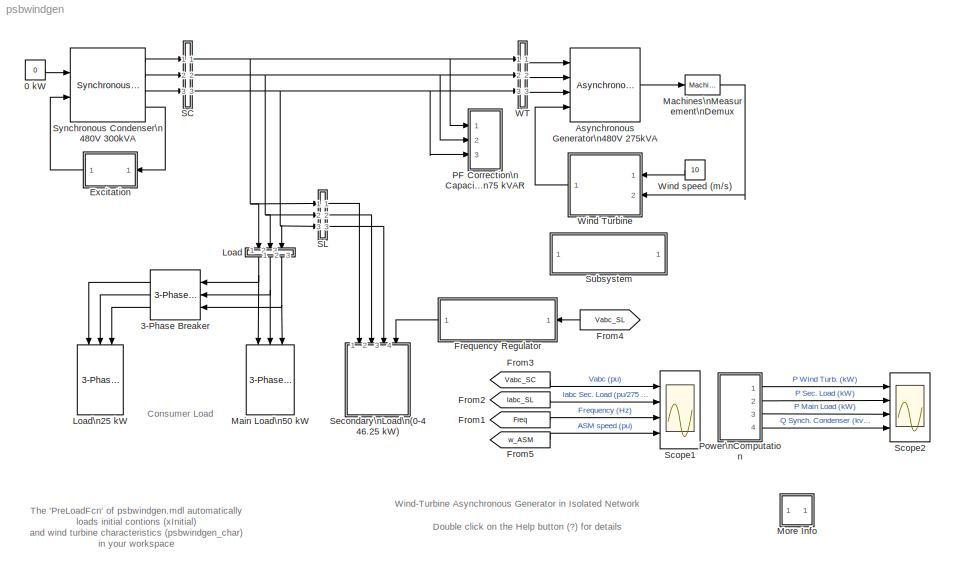
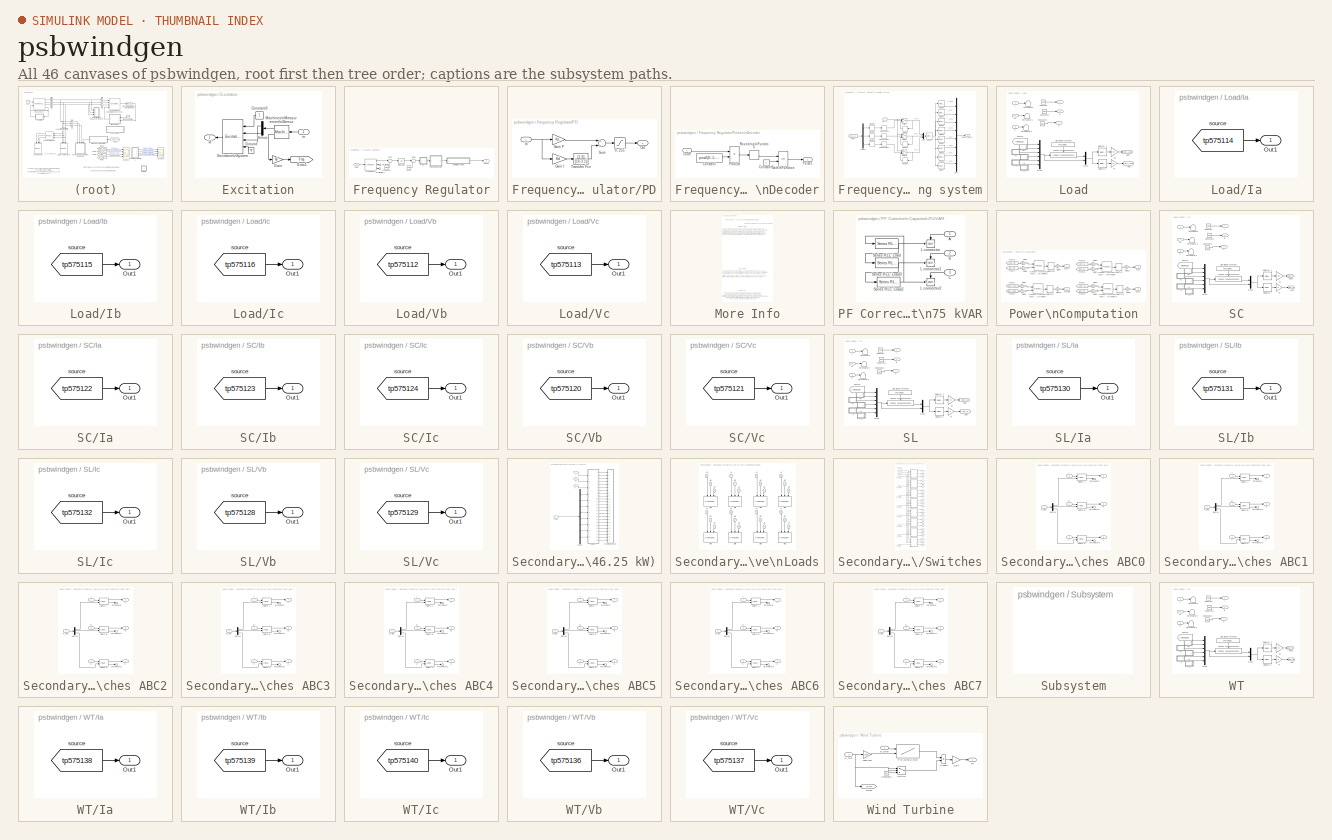
[diagram: thumbnail index - all 46 canvases of the model, root first then tree order]
MODEL psbwindgen
KIND model
CONFIG InitFcn = powericon('psbinitsys',bdroot);
CONFIG PreLoadFcn = load psbwindgen_data
BLOCK [Constant] 0 kW
  Value = 0
BLOCK [Reference] 3-Phase Breaker  REF=powerlib2/Elements/3-Phase Breaker
  Cp = inf
  Ports = [3, 3]
  Ron = 0.001
  Rp = 1e6
  ShowPortLabels = on
  SourceBlock = powerlib2/Elements/3-Phase Breaker
  SourceType = Three-Phase Breaker
  Ts = 0
  comext = off
  init_states = open
  mesure = None
  sa = on
  sb = on
  sc = on
  sw_times = [0.2]
BLOCK [Reference] Asynchronous Generator\n480V 275kVA  REF=powerlib2/Machines/Asynchronous Machine\npu Units
  LoadFlowParameters = 0
  PSBOutputType = 1110
  Ports = [4, 1]
  ShowPortLabels = on
  SourceBlock = powerlib2/Machines/Asynchronous Machine\npu Units
  SourceType = Asynchronous Machine
  Tag = PoWeRsYsTeMbLoCk
  ctrl = Rotor
  iounits = 0
  rotType = Squirrel-cage
  x1 = [ 275e3, 480, 60 ]
  x2 = [ 0.016,0.06]
  x3 = [ 0.015,0.06]
  x4 = 3.5
  x5 = [ 2,0,2 ]
  x6 = [-8.89496e-048 0 0.280896 0.280896 0.280896 -89.7425 150.258 30.2575]
BLOCK [SubSystem] Excitation
  MinAlgLoopOccurrences = off
  Ports = [1, 1]
  RTWSystemCode = Auto
  TreatAsAtomicUnit = off
BLOCK [Constant] Excitation/Constant3
BLOCK [Demux] Excitation/Demux
  Outputs = 2
  Ports = [1, 2]
BLOCK [Reference] Excitation/Excitation\nSystem  REF=powerlib2/Machines/Excitation\nSystem
  Ports = [4, 1]
  ShowPortLabels = on
  SourceBlock = powerlib2/Machines/Excitation\nSystem
  SourceType = Excitation System
  damp = [ 0.001, 0.1 ]
  exc = [ 1, 0 ]
  lim = [ -11.5, 11.5, 0 ]
  reg = [ 300, 0.001 ]
  sat = [ 0, 0 ]
  tgr = [ 0, 0 ]
  tr = 20e-3
  v0 = [1,2.71455]
BLOCK [Gain] Excitation/Gain
  Gain = 60
BLOCK [Goto] Excitation/Goto1
  DialogController = Simulink.DDGSource
  GotoTag = Freq
  TagVisibility = global
BLOCK [Ground] Excitation/Ground
BLOCK [Reference] Excitation/Machines\nMeasurement\nDemux  REF=powerlib2/Machines/Machines\nMeasurement\nDemux
  Ports = [1, 2]
  ShowPortLabels = on
  SourceBlock = powerlib2/Machines/Machines\nMeasurement\nDemux
  SourceType = Machine measurements
  asm1 = on
  asm10 = on
  asm11 = on
  asm2 = on
  asm3 = on
  asm4 = on
  asm5 = on
  asm6 = on
  asm7 = on
  asm8 = on
  asm9 = on
  lastType = 1
  machType = Synchronous
  pmsm1 = on
  pmsm2 = on
  pmsm3 = on
  pmsm4 = on
  pmsm5 = on
  pmsm6 = on
  sm1 = off
  sm10 = off
  sm11 = off
  sm115 = off
  sm12 = off
  sm13 = off
  sm14 = off
  sm2 = off
  sm3 = off
  sm4 = off
  sm5 = off
  sm6 = on
  sm7 = off
  sm8 = on
  sm9 = off
  ssm1 = on
  ssm2 = on
  ssm3 = on
  ssm4 = on
  ssm5 = on
  ssm6 = on
BLOCK [Outport] Excitation/Vf
  BusOutputAsStruct = off
  IconDisplay = Port number
BLOCK [Inport] Excitation/m
  IconDisplay = Port number
  LatchInput = off
  Port = 1
BLOCK [SubSystem] Frequency Regulator
  MaskCallbackString = |||
  MaskDescription = Frequency regulator\n\nInput : phase to ground voltages\n\nOutput : 24 logical signals for the control of the dump load
  MaskEnableString = on,on,on,on
  MaskIconFrame = on
  MaskIconOpaque = on
  MaskIconRotate = none
  MaskIconUnits = autoscale
  MaskInitialization = Vbase=Vpp_nom/sqrt(3);\nKp=gains_regulator(1);\nKd=gains_regulator(2);\n
  MaskPromptString = Phase to phase voltage (Vrms):|Reference frequency (Hz):|Regulator gains  [Kp Kd]:|Reference phase (rd):
  MaskStyleString = edit,edit,edit,edit
  MaskTabNameString = ,,,
  MaskToolTipString = on,on,on,on
  MaskTunableValueString = on,on,on,on
  MaskType = Frequency regulator
  MaskValueString = 460|60|[150 70]|1
  MaskVarAliasString = ,,,
  MaskVariables = Vpp_nom=@1;Freq=@2;gains_regulator=@3;Phref=@4;
  MaskVisibilityString = on,on,on,on
  MinAlgLoopOccurrences = off
  Ports = [1, 1]
  RTWSystemCode = Auto
  TreatAsAtomicUnit = off
BLOCK [Reference] Frequency Regulator/3-phase PLL  REF=powerlib_extras/Control \nBlocks/3-phase PLL
  ParK = [60 1400]
  Par_Init = [0 Freq]
  Ports = [1, 3]
  SourceBlock = powerlib_extras/Control \nBlocks/3-phase PLL
  SourceType = 3-phase PLL
BLOCK [Outport] Frequency Regulator/Control
  BusOutputAsStruct = off
  IconDisplay = Port number
BLOCK [Constant] Frequency Regulator/Frequency
  Value = Freq
BLOCK [Integrator] Frequency Regulator/Integrator
  LimitOutput = on
  LowerSaturationLimit = -1
  Ports = [1, 1]
  UpperSaturationLimit = 6
BLOCK [SubSystem] Frequency Regulator/PD
  MinAlgLoopOccurrences = off
  Ports = [1, 1]
  RTWSystemCode = Auto
  TreatAsAtomicUnit = off
BLOCK [Saturate] Frequency Regulator/PD/0, 255
  LowerLimit = 0
  UpperLimit = 255
BLOCK [Gain] Frequency Regulator/PD/Gain I
  Gain = Kd
BLOCK [Gain] Frequency Regulator/PD/Gain P
  Gain = Kp
BLOCK [Inport] Frequency Regulator/PD/In
  IconDisplay = Port number
  LatchInput = off
  Port = 1
BLOCK [Outport] Frequency Regulator/PD/Out
  BusOutputAsStruct = off
  IconDisplay = Port number
BLOCK [Sum] Frequency Regulator/PD/Sum
  Ports = [2, 1]
BLOCK [TransferFcn] Frequency Regulator/PD/Transfer Fcn
  Denominator = [1e-3 1]
  Numerator = [1 0]
BLOCK [Constant] Frequency Regulator/Phref
  Value = Phref
BLOCK [SubSystem] Frequency Regulator/Pulses\nDecoder
  MaskDescription = Decode the scalar input 'Code' into a vector output 'Pulses' based on  the specified number of bits to decode.\n(Element 1 of vector output = least significant bit)\n
  MaskEnableString = on
  MaskIconFrame = on
  MaskIconOpaque = on
  MaskIconRotate = none
  MaskIconUnits = autoscale
  MaskPromptString = Number of bits to decode:
  MaskStyleString = edit
  MaskToolTipString = on
  MaskTunableValueString = on
  MaskType = Pulses Decoder
  MaskValueString = 8
  MaskVariables = n=@1;
  MaskVisibilityString = on
  MinAlgLoopOccurrences = off
  Ports = [1, 1]
  RTWSystemCode = Auto
  TreatAsAtomicUnit = off
BLOCK [Inport] Frequency Regulator/Pulses\nDecoder/Code
  IconDisplay = Port number
  LatchInput = off
  Port = 1
BLOCK [Constant] Frequency Regulator/Pulses\nDecoder/Constant
  Value = pow2(0:-1:-(n-1))
BLOCK [Constant] Frequency Regulator/Pulses\nDecoder/Constant6
  Value = 2
BLOCK [Math] Frequency Regulator/Pulses\nDecoder/Math\nFunction
  Operator = rem
  Ports = [2, 1]
BLOCK [Product] Frequency Regulator/Pulses\nDecoder/Product
  Ports = [2, 1]
  RndMeth = Floor
BLOCK [Outport] Frequency Regulator/Pulses\nDecoder/Pulses
  BusOutputAsStruct = off
  IconDisplay = Port number
BLOCK [Rounding] Frequency Regulator/Pulses\nDecoder/Rounding\nFunction
BLOCK [SubSystem] Frequency Regulator/Sampling system
  MinAlgLoopOccurrences = off
  Ports = [1, 1]
  RTWSystemCode = Auto
  TreatAsAtomicUnit = off
BLOCK [Selector] Frequency Regulator/Sampling system/ Bit ABC4
  Elements = [13 14 15]
  InputPortWidth = 24
  Ports = [1, 1]
BLOCK [Inport] Frequency Regulator/Sampling system/BITA0_7
  IconDisplay = Port number
  LatchInput = off
  Port = 1
BLOCK [Selector] Frequency Regulator/Sampling system/Bit ABC0
  Elements = [1 2 3]
  InputPortWidth = 24
  Ports = [1, 1]
BLOCK [Selector] Frequency Regulator/Sampling system/Bit ABC1
  Elements = [4 5 6]
  InputPortWidth = 24
  Ports = [1, 1]
BLOCK [Selector] Frequency Regulator/Sampling system/Bit ABC2
  Elements = [7 8 9]
  InputPortWidth = 24
  Ports = [1, 1]
BLOCK [Selector] Frequency Regulator/Sampling system/Bit ABC3
  Elements = [10 11 12]
  InputPortWidth = 24
  Ports = [1, 1]
BLOCK [Selector] Frequency Regulator/Sampling system/Bit ABC5
  Elements = [16 17 18]
  InputPortWidth = 24
  Ports = [1, 1]
BLOCK [Selector] Frequency Regulator/Sampling system/Bit ABC6
  Elements = [19 20 21]
  InputPortWidth = 24
  Ports = [1, 1]
BLOCK [Selector] Frequency Regulator/Sampling system/Bit ABC7
  Elements = [22 23 24]
  InputPortWidth = 24
  Ports = [1, 1]
BLOCK [Demux] Frequency Regulator/Sampling system/Demux
  Outputs = 3
  Ports = [1, 3]
BLOCK [From] Frequency Regulator/Sampling system/From1
  CloseFcn = tagdialog Close
  DialogController = Simulink.DDGSource
  GotoTag = Iabc_SL
BLOCK [Memory] Frequency Regulator/Sampling system/Memory
BLOCK [Memory] Frequency Regulator/Sampling system/Memory1
BLOCK [Memory] Frequency Regulator/Sampling system/Memory2
BLOCK [Memory] Frequency Regulator/Sampling system/Memory3
BLOCK [Memory] Frequency Regulator/Sampling system/Memory4
BLOCK [Memory] Frequency Regulator/Sampling system/Memory5
BLOCK [Mux] Frequency Regulator/Sampling system/Mux
  DisplayOption = bar
  Inputs = 3
  Ports = [3, 1]
BLOCK [Mux] Frequency Regulator/Sampling system/Mux1
  DisplayOption = bar
  Inputs = 8
  Ports = [8, 1]
BLOCK [Outport] Frequency Regulator/Sampling system/Pulses_ABC0_7
  BusOutputAsStruct = off
  IconDisplay = Port number
BLOCK [Selector] Frequency Regulator/Sampling system/Selector
  Elements = [1 9 17 2 10 18 3 11 19 4 12 20 5 13 21 6 14 22 7 15 23 8 16 24]
  InputPortWidth = 24
  Ports = [1, 1]
BLOCK [Switch] Frequency Regulator/Sampling system/Switch
  Threshold = 0.5
BLOCK [Switch] Frequency Regulator/Sampling system/Switch1
  Threshold = 0.5
BLOCK [Switch] Frequency Regulator/Sampling system/Switch2
  Threshold = 0.5
BLOCK [HitCross] Frequency Regulator/Sampling system/Zero crossing
  HitCrossingDirection = either
  Ports = [1, 1]
BLOCK [HitCross] Frequency Regulator/Sampling system/Zero crossing1
  HitCrossingDirection = either
  Ports = [1, 1]
BLOCK [HitCross] Frequency Regulator/Sampling system/Zero crossing2
  HitCrossingDirection = either
  Ports = [1, 1]
BLOCK [Sum] Frequency Regulator/Sum
  IconShape = round
  Inputs = |+-
  Ports = [2, 1]
BLOCK [Sum] Frequency Regulator/Sum1
  IconShape = round
  Inputs = |+-
  Ports = [2, 1]
BLOCK [Terminator] Frequency Regulator/Terminator
BLOCK [Terminator] Frequency Regulator/Terminator1
BLOCK [Inport] Frequency Regulator/Vabc
  IconDisplay = Port number
  LatchInput = off
  Port = 1
BLOCK [From] From1
  CloseFcn = tagdialog Close
  DialogController = Simulink.DDGSource
  GotoTag = Freq
BLOCK [From] From2
  CloseFcn = tagdialog Close
  DialogController = Simulink.DDGSource
  GotoTag = Iabc_SL
BLOCK [From] From3
  CloseFcn = tagdialog Close
  DialogController = Simulink.DDGSource
  GotoTag = Vabc_SC
BLOCK [From] From4
  CloseFcn = tagdialog Close
  DialogController = Simulink.DDGSource
  GotoTag = Vabc_SL
BLOCK [From] From5
  CloseFcn = tagdialog Close
  DialogController = Simulink.DDGSource
  GotoTag = w_ASM
BLOCK [SubSystem] Load
  AncestorBlock = powerlib2/Measurements/Three-Phase\nV-I Measurement
  CloseFcn = %3phaseVImeasurement
  CopyFcn = powericon('psbloadfunction',gcbh,'3-Phase VI Measurement','VerifyPhasor');
  InitFcn = powericon('checksum',bdroot)
  LoadFcn = powericon('psbloadfunction',gcbh,'3-Phase VI Measurement','');
  MaskCallbackString = powericon('psbcallbacks',gcb,'Three-phase measurements',2);|powericon('psbcallbacks',gcb,'Three-phase measurements',2);||powericon('psbcallbacks',gcb,'Three-phase measurements',2);||powericon('psbcallbacks',gcb,'Three-phase measurements',2);|powericon('psbcallbacks',gcb,'Three-phase measurements',2);||powericon('psbcallbacks',gcb,'Three-phase measurements',4);|||||  <repeated x4 — deduplicated; at blocks: Load, SC, SL, WT>
  MaskDescription = This block is used to measure three-phase voltages and currents in a circuit. When connected in series with a three-phase element, it return the three phase-to-ground voltages and line currents.\n\nThe block can output the voltages and currents in per unit values or in volts and amperes. Check the appropriate boxes if you want to output the voltages and currents  in pu  <repeated x4 — deduplicated; at blocks: Load, SC, SL, WT>
  MaskEnableString = on,on,on,on,on,on,on,on,on,on,off,on,off,on
  MaskHelp = web(psbhelp)
  MaskIconFrame = on
  MaskIconOpaque = on
  MaskIconRotate = none
  MaskIconUnits = autoscale
  MaskInitialization = powericon('psbcallbacks',gcb,'Three-phase measurements',4);\nif  Vpu\n    xKv=1/(Vbase/sqrt(3)*sqrt(2));\nelse\n    xKv=1;\nend\nif  Ppu\n    xKi=1/(Pbase/Vbase/sqrt(3)*sqrt(2));\nelse\n    xKi=1;\nend\nswitch OutputType\ncase 1\n    OutputSelection  = [1:6];\n    PhasorModeV = [1:3];\n    NormalModeV = [7:9];\n    PhasorModeI = [4:6];\n    NormalModeI = [10:12];\n    Kv = xKv;\n    Ki = xKi;\ncas...<+826ch>  <repeated x4 — deduplicated; at blocks: Load, SC, SL, WT>
  MaskPromptString = Voltage measurement|Use a label |Signal label  (use a From block to collect signal)|Voltage  in pu|Base voltage (Vrms phase-phase) :|Current measurement|Use a label|Signal label  (use a From block to collect signal)|Currents in pu|Base power ( VA 3 phase)|Output signal :|Phasor simulation|Equivalent circuit|PSBOutputType  <repeated x4 — deduplicated; at blocks: Load, SC, SL, WT>
  MaskSelfModifiable = on
  MaskStyleString = popup(no|phase-to-ground|phase-to-phase),checkbox,edit,checkbox,edit,popup(no|yes),checkbox,edit,checkbox,edit,popup(Complex|Real-Imag|Magnitude-Angle|Magnitude),checkbox,edit,edit
  MaskTabNameString = ,,,,,,,,,,,,,
  MaskToolTipString = on,on,on,on,on,on,on,on,on,on,on,on,on,on
  MaskTunableValueString = off,off,off,on,on,off,off,off,on,on,on,on,on,on
  MaskType = 3-Phase VI Measurement
  MaskValueString = phase-to-ground|on|Vabc_Load|on|480|yes|on|Iabc_Load|on|275e3|Magnitude|off|0|11100
  MaskVarAliasString = ,,,,,,,,,,,,,
  MaskVariables = VChoice=@1;ualv=@2;labelV=&3;Vpu=@4;Vbase=@5;IChoice=@6;ualc=@7;labelC=&8;Ppu=@9;Pbase=@10;OutputType=@11;PhasorSimulation=@12;PSBequivalent=@13;PSBOutputType=&14;
  MaskVisibilityString = on,on,on,on,on,on,on,on,on,on,on,off,off,off
  MinAlgLoopOccurrences = off
  Ports = [3, 3]
  RTWSystemCode = Auto
  Tag = PoWeRsYsTeMmEaSuReMeNt
  TreatAsAtomicUnit = off
BLOCK [Inport] Load/A
  IconDisplay = Port number
  LatchInput = off
  Port = 1
BLOCK [Outport] Load/A 
  BusOutputAsStruct = off
  IconDisplay = Port number
BLOCK [Inport] Load/B
  IconDisplay = Port number
  LatchInput = off
  Port = 2
BLOCK [Outport] Load/B 
  BusOutputAsStruct = off
  IconDisplay = Port number
  Port = 2
BLOCK [Inport] Load/C
  IconDisplay = Port number
  LatchInput = off
  Port = 3
BLOCK [Outport] Load/C 
  BusOutputAsStruct = off
  IconDisplay = Port number
  Port = 3
BLOCK [Constant] Load/Constant
  Value = NaN
BLOCK [Constant] Load/Constant1
  Value = NaN
BLOCK [Constant] Load/Constant2
  Value = NaN
BLOCK [SubSystem] Load/Ia
  AncestorBlock = powerlib2/Measurements/Three-Phase\nV-I Measurement/Ia
  MinAlgLoopOccurrences = off
  Ports = [0, 1]
  RTWSystemCode = Auto
  TreatAsAtomicUnit = off
BLOCK [Outport] Load/Ia/Out1
  BusOutputAsStruct = off
  IconDisplay = Port number
BLOCK [From] Load/Ia/source
  DialogController = Simulink.DDGSource
  GotoTag = tp575114
BLOCK [Goto] Load/Iabc
  DialogController = Simulink.DDGSource
  GotoTag = Iabc_Load
  TagVisibility = global
BLOCK [SubSystem] Load/Ib
  AncestorBlock = powerlib2/Measurements/Three-Phase\nV-I Measurement/Ib
  MinAlgLoopOccurrences = off
  Ports = [0, 1]
  RTWSystemCode = Auto
  TreatAsAtomicUnit = off
BLOCK [Outport] Load/Ib/Out1
  BusOutputAsStruct = off
  IconDisplay = Port number
BLOCK [From] Load/Ib/source
  DialogController = Simulink.DDGSource
  GotoTag = tp575115
BLOCK [SubSystem] Load/Ic
  AncestorBlock = powerlib2/Measurements/Three-Phase\nV-I Measurement/Ic
  MinAlgLoopOccurrences = off
  Ports = [0, 1]
  RTWSystemCode = Auto
  TreatAsAtomicUnit = off
BLOCK [Outport] Load/Ic/Out1
  BusOutputAsStruct = off
  IconDisplay = Port number
BLOCK [From] Load/Ic/source
  DialogController = Simulink.DDGSource
  GotoTag = tp575116
BLOCK [Gain] Load/Ki
  Gain = Ki
BLOCK [Gain] Load/Kv
  Gain = Kv
BLOCK [Mux] Load/Mux1
  DisplayOption = bar
  Inputs = 6
  Ports = [6, 1]
BLOCK [Mux] Load/Mux3
  DisplayOption = bar
  Inputs = 2
  Ports = [2, 1]
BLOCK [Reference] Load/Phasor Measurements  REF=powerlib2/Measurements/Three-Phase\nV-I Measurement/Phasor Measurements
  DataTypeOverride = UseLocalSettings
  MinMaxOverflowLogging = UseLocalSettings
  Permissions = ReadWrite
  Ports = [1, 1, 1]
  RTWFcnNameOpts = Auto
  RTWFileNameOpts = Auto
  RTWSystemCode = Auto
  ShowPortLabels = on
  SimViewingDevice = off
  SourceBlock = powerlib2/Measurements/Three-Phase\nV-I Measurement/Phasor Measurements
  SourceType = SubSystem
  TreatAsAtomicUnit = on
BLOCK [Selector] Load/Selector I
  Elements = SelectionModeI
  InputPortWidth = length(OutputSelection)+6
  Ports = [1, 1]
BLOCK [Selector] Load/Selector V
  Elements = SelectionModeV
  InputPortWidth = length(OutputSelection)+6
  Ports = [1, 1]
BLOCK [Constant] Load/Simulation method
  Value = PhasorSimulation
BLOCK [Terminator] Load/Terminator
BLOCK [Terminator] Load/Terminator1
BLOCK [Terminator] Load/Terminator2
BLOCK [Goto] Load/Vabc
  DialogController = Simulink.DDGSource
  GotoTag = Vabc_Load
  TagVisibility = global
BLOCK [SubSystem] Load/Vb
  AncestorBlock = powerlib2/Measurements/Three-Phase\nV-I Measurement/Vb
  MinAlgLoopOccurrences = off
  Ports = [0, 1]
  RTWSystemCode = Auto
  TreatAsAtomicUnit = off
BLOCK [Outport] Load/Vb/Out1
  BusOutputAsStruct = off
  IconDisplay = Port number
BLOCK [From] Load/Vb/source
  DialogController = Simulink.DDGSource
  GotoTag = tp575112
BLOCK [SubSystem] Load/Vc
  AncestorBlock = powerlib2/Measurements/Three-Phase\nV-I Measurement/Vc
  MinAlgLoopOccurrences = off
  Ports = [0, 1]
  RTWSystemCode = Auto
  TreatAsAtomicUnit = off
BLOCK [Outport] Load/Vc/Out1
  BusOutputAsStruct = off
  IconDisplay = Port number
BLOCK [From] Load/Vc/source
  DialogController = Simulink.DDGSource
  GotoTag = tp575113
BLOCK [From] Load/source
  DialogController = Simulink.DDGSource
  GotoTag = tp575111
BLOCK [Reference] Load\n25 kW  REF=powerlib2/Elements/3-Phase\nParallel RLC Load
  P3 = 25e3
  Ports = [3]
  QC3 = 0
  QL3 = 0
  ShowPortLabels = on
  SourceBlock = powerlib2/Elements/3-Phase\nParallel RLC Load
  SourceType = 3-phase parallel RLC load
  Vpp = 480
  fn = 60
BLOCK [Reference] Machines\nMeasurement\nDemux  REF=powerlib2/Machines/Machines\nMeasurement\nDemux
  Ports = [1, 1]
  ShowPortLabels = on
  SourceBlock = powerlib2/Machines/Machines\nMeasurement\nDemux
  SourceType = Machine measurements
  asm1 = off
  asm10 = off
  asm11 = off
  asm2 = off
  asm3 = off
  asm4 = off
  asm5 = off
  asm6 = off
  asm7 = off
  asm8 = off
  asm9 = on
  lastType = 1
  machType = Asynchronous
  pmsm1 = on
  pmsm2 = on
  pmsm3 = on
  pmsm4 = on
  pmsm5 = on
  pmsm6 = on
  sm1 = off
  sm10 = off
  sm11 = off
  sm115 = off
  sm12 = off
  sm13 = off
  sm14 = off
  sm2 = off
  sm3 = off
  sm4 = off
  sm5 = off
  sm6 = off
  sm7 = off
  sm8 = on
  sm9 = off
  ssm1 = on
  ssm2 = on
  ssm3 = on
  ssm4 = on
  ssm5 = on
  ssm6 = on
BLOCK [Reference] Main Load\n50 kW  REF=powerlib2/Elements/3-Phase\nParallel RLC Load
  P3 = 50e3
  Ports = [3]
  QC3 = 0
  QL3 = 0
  ShowPortLabels = on
  SourceBlock = powerlib2/Elements/3-Phase\nParallel RLC Load
  SourceType = 3-phase parallel RLC load
  Vpp = 480
  fn = 60
BLOCK [SubSystem] More Info
  MaskDisplay = disp('?')
  MaskIconFrame = on
  MaskIconOpaque = on
  MaskIconRotate = none
  MaskIconUnits = autoscale
  MinAlgLoopOccurrences = off
  Ports = []
  RTWSystemCode = Auto
  TreatAsAtomicUnit = off
BLOCK [SubSystem] PF Correction\n Capacitor\n75 kVAR
  MinAlgLoopOccurrences = off
  Ports = [3]
  RTWSystemCode = Auto
  TreatAsAtomicUnit = off
BLOCK [Inport] PF Correction\n Capacitor\n75 kVAR/A
  IconDisplay = Port number
  LatchInput = off
  Port = 1
BLOCK [Inport] PF Correction\n Capacitor\n75 kVAR/B
  IconDisplay = Port number
  LatchInput = off
  Port = 2
BLOCK [Inport] PF Correction\n Capacitor\n75 kVAR/C
  IconDisplay = Port number
  LatchInput = off
  Port = 3
BLOCK [Reference] PF Correction\n Capacitor\n75 kVAR/L connector  REF=powerlib2/Connectors/L connector
  Ports = [1, 0, 1]
  ShowPortLabels = on
  SourceBlock = powerlib2/Connectors/L connector
  SourceType = Bus Bar
  Tag = PoWeRsYsTeMbLoCk
BLOCK [Reference] PF Correction\n Capacitor\n75 kVAR/L connector1  REF=powerlib2/Connectors/L connector
  Ports = [1, 0, 1]
  ShowPortLabels = on
  SourceBlock = powerlib2/Connectors/L connector
  SourceType = Bus Bar
  Tag = PoWeRsYsTeMbLoCk
BLOCK [Reference] PF Correction\n Capacitor\n75 kVAR/L connector2  REF=powerlib2/Connectors/L connector
  Ports = [1, 0, 1]
  ShowPortLabels = on
  SourceBlock = powerlib2/Connectors/L connector
  SourceType = Bus Bar
  Tag = PoWeRsYsTeMbLoCk
BLOCK [Reference] PF Correction\n Capacitor\n75 kVAR/Series RLC Load  REF=powerlib2/Elements/Series RLC Load
  PSBOutputType = 1
  Ports = [1, 1]
  ShowPortLabels = on
  SourceBlock = powerlib2/Elements/Series RLC Load
  SourceType = Series RLC Load
  Tag = PoWeRsYsTeMbLoCk
  a = 480
  b = 60
  c = 0
  d = 0
  e = 25e3
  mesure = None
BLOCK [Reference] PF Correction\n Capacitor\n75 kVAR/Series RLC Load2  REF=powerlib2/Elements/Series RLC Load
  PSBOutputType = 1
  Ports = [1, 1]
  ShowPortLabels = on
  SourceBlock = powerlib2/Elements/Series RLC Load
  SourceType = Series RLC Load
  Tag = PoWeRsYsTeMbLoCk
  a = 480
  b = 60
  c = 0
  d = 0
  e = 25e3
  mesure = None
BLOCK [Reference] PF Correction\n Capacitor\n75 kVAR/Series RLC Load3  REF=powerlib2/Elements/Series RLC Load
  PSBOutputType = 1
  Ports = [1, 1]
  ShowPortLabels = on
  SourceBlock = powerlib2/Elements/Series RLC Load
  SourceType = Series RLC Load
  Tag = PoWeRsYsTeMbLoCk
  a = 480
  b = 60
  c = 0
  d = 0
  e = 25e3
  mesure = None
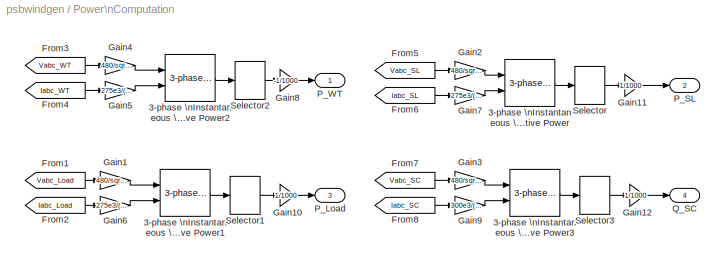
BLOCK [SubSystem] Power\nComputation
  MinAlgLoopOccurrences = off
  Ports = [0, 4]
  RTWSystemCode = Auto
  TreatAsAtomicUnit = off
BLOCK [Reference] Power\nComputation/3-phase \nInstantaneous \nActive & Reactive Power  REF=powerlib_extras/Measurements/3-phase \nInstantaneous \nActive & Reactive Power
  Ports = [2, 1]
  ShowPortLabels = on
  SourceBlock = powerlib_extras/Measurements/3-phase \nInstantaneous \nActive & Reactive Power
  SourceType = 3-phase instantaneous active and reactive power
BLOCK [Reference] Power\nComputation/3-phase \nInstantaneous \nActive & Reactive Power1  REF=powerlib_extras/Measurements/3-phase \nInstantaneous \nActive & Reactive Power
  Ports = [2, 1]
  ShowPortLabels = on
  SourceBlock = powerlib_extras/Measurements/3-phase \nInstantaneous \nActive & Reactive Power
  SourceType = 3-phase instantaneous active and reactive power
BLOCK [Reference] Power\nComputation/3-phase \nInstantaneous \nActive & Reactive Power2  REF=powerlib_extras/Measurements/3-phase \nInstantaneous \nActive & Reactive Power
  Ports = [2, 1]
  ShowPortLabels = on
  SourceBlock = powerlib_extras/Measurements/3-phase \nInstantaneous \nActive & Reactive Power
  SourceType = 3-phase instantaneous active and reactive power
BLOCK [Reference] Power\nComputation/3-phase \nInstantaneous \nActive & Reactive Power3  REF=powerlib_extras/Measurements/3-phase \nInstantaneous \nActive & Reactive Power
  Ports = [2, 1]
  ShowPortLabels = on
  SourceBlock = powerlib_extras/Measurements/3-phase \nInstantaneous \nActive & Reactive Power
  SourceType = 3-phase instantaneous active and reactive power
BLOCK [From] Power\nComputation/From1
  CloseFcn = tagdialog Close
  DialogController = Simulink.DDGSource
  GotoTag = Vabc_Load
BLOCK [From] Power\nComputation/From2
  CloseFcn = tagdialog Close
  DialogController = Simulink.DDGSource
  GotoTag = Iabc_Load
BLOCK [From] Power\nComputation/From3
  CloseFcn = tagdialog Close
  DialogController = Simulink.DDGSource
  GotoTag = Vabc_WT
BLOCK [From] Power\nComputation/From4
  CloseFcn = tagdialog Close
  DialogController = Simulink.DDGSource
  GotoTag = Iabc_WT
BLOCK [From] Power\nComputation/From5
  CloseFcn = tagdialog Close
  DialogController = Simulink.DDGSource
  GotoTag = Vabc_SL
BLOCK [From] Power\nComputation/From6
  CloseFcn = tagdialog Close
  DialogController = Simulink.DDGSource
  GotoTag = Iabc_SL
BLOCK [From] Power\nComputation/From7
  CloseFcn = tagdialog Close
  DialogController = Simulink.DDGSource
  GotoTag = Vabc_SC
BLOCK [From] Power\nComputation/From8
  CloseFcn = tagdialog Close
  DialogController = Simulink.DDGSource
  GotoTag = Iabc_SC
BLOCK [Gain] Power\nComputation/Gain1
  Gain = 480/sqrt(3)*sqrt(2)
BLOCK [Gain] Power\nComputation/Gain10
  Gain = 1/1000
BLOCK [Gain] Power\nComputation/Gain11
  Gain = 1/1000
BLOCK [Gain] Power\nComputation/Gain12
  Gain = 1/1000
BLOCK [Gain] Power\nComputation/Gain2
  Gain = 480/sqrt(3)*sqrt(2)
BLOCK [Gain] Power\nComputation/Gain3
  Gain = 480/sqrt(3)*sqrt(2)
BLOCK [Gain] Power\nComputation/Gain4
  Gain = 480/sqrt(3)*sqrt(2)
BLOCK [Gain] Power\nComputation/Gain5
  Gain = 275e3/(sqrt(3)*480)*sqrt(2)
BLOCK [Gain] Power\nComputation/Gain6
  Gain = 275e3/(sqrt(3)*480)*sqrt(2)
BLOCK [Gain] Power\nComputation/Gain7
  Gain = 275e3/(sqrt(3)*480)*sqrt(2)
BLOCK [Gain] Power\nComputation/Gain8
  Gain = -1/1000
BLOCK [Gain] Power\nComputation/Gain9
  Gain = 300e3/(sqrt(3)*480)*sqrt(2)
BLOCK [Outport] Power\nComputation/P_Load
  BusOutputAsStruct = off
  IconDisplay = Port number
  Port = 3
BLOCK [Outport] Power\nComputation/P_SL
  BusOutputAsStruct = off
  IconDisplay = Port number
  Port = 2
BLOCK [Outport] Power\nComputation/P_WT
  BusOutputAsStruct = off
  IconDisplay = Port number
BLOCK [Outport] Power\nComputation/Q_SC
  BusOutputAsStruct = off
  IconDisplay = Port number
  Port = 4
BLOCK [Selector] Power\nComputation/Selector
  Elements = [1]
  InputPortWidth = 2
  Ports = [1, 1]
BLOCK [Selector] Power\nComputation/Selector1
  Elements = [1]
  InputPortWidth = 2
  Ports = [1, 1]
BLOCK [Selector] Power\nComputation/Selector2
  Elements = [1]
  InputPortWidth = 2
  Ports = [1, 1]
BLOCK [Selector] Power\nComputation/Selector3
  Elements = [2]
  InputPortWidth = 2
  Ports = [1, 1]
BLOCK [SubSystem] SC
  AncestorBlock = powerlib2/Measurements/Three-Phase\nV-I Measurement
  CloseFcn = %3phaseVImeasurement
  CopyFcn = powericon('psbloadfunction',gcbh,'3-Phase VI Measurement','VerifyPhasor');
  InitFcn = powericon('checksum',bdroot)
  LoadFcn = powericon('psbloadfunction',gcbh,'3-Phase VI Measurement','');
  MaskEnableString = on,on,on,on,on,on,on,on,on,on,off,on,off,on
  MaskHelp = web(psbhelp)
  MaskIconFrame = on
  MaskIconOpaque = on
  MaskIconRotate = none
  MaskIconUnits = autoscale
  MaskSelfModifiable = on
  MaskStyleString = popup(no|phase-to-ground|phase-to-phase),checkbox,edit,checkbox,edit,popup(no|yes),checkbox,edit,checkbox,edit,popup(Complex|Real-Imag|Magnitude-Angle|Magnitude),checkbox,edit,edit
  MaskTabNameString = ,,,,,,,,,,,,,
  MaskToolTipString = on,on,on,on,on,on,on,on,on,on,on,on,on,on
  MaskTunableValueString = off,off,off,on,on,off,off,off,on,on,on,on,on,on
  MaskType = 3-Phase VI Measurement
  MaskValueString = phase-to-ground|on|Vabc_SC|on|480|yes|on|Iabc_SC|on|300e3|Magnitude|off|0|11100
  MaskVarAliasString = ,,,,,,,,,,,,,
  MaskVariables = VChoice=@1;ualv=@2;labelV=&3;Vpu=@4;Vbase=@5;IChoice=@6;ualc=@7;labelC=&8;Ppu=@9;Pbase=@10;OutputType=@11;PhasorSimulation=@12;PSBequivalent=@13;PSBOutputType=&14;
  MaskVisibilityString = on,on,on,on,on,on,on,on,on,on,on,off,off,off
  MinAlgLoopOccurrences = off
  Ports = [3, 3]
  RTWSystemCode = Auto
  Tag = PoWeRsYsTeMmEaSuReMeNt
  TreatAsAtomicUnit = off
BLOCK [Inport] SC/A
  IconDisplay = Port number
  LatchInput = off
  Port = 1
BLOCK [Outport] SC/A 
  BusOutputAsStruct = off
  IconDisplay = Port number
BLOCK [Inport] SC/B
  IconDisplay = Port number
  LatchInput = off
  Port = 2
BLOCK [Outport] SC/B 
  BusOutputAsStruct = off
  IconDisplay = Port number
  Port = 2
BLOCK [Inport] SC/C
  IconDisplay = Port number
  LatchInput = off
  Port = 3
BLOCK [Outport] SC/C 
  BusOutputAsStruct = off
  IconDisplay = Port number
  Port = 3
BLOCK [Constant] SC/Constant
  Value = NaN
BLOCK [Constant] SC/Constant1
  Value = NaN
BLOCK [Constant] SC/Constant2
  Value = NaN
BLOCK [SubSystem] SC/Ia
  AncestorBlock = powerlib2/Measurements/Three-Phase\nV-I Measurement/Ia
  MinAlgLoopOccurrences = off
  Ports = [0, 1]
  RTWSystemCode = Auto
  TreatAsAtomicUnit = off
BLOCK [Outport] SC/Ia/Out1
  BusOutputAsStruct = off
  IconDisplay = Port number
BLOCK [From] SC/Ia/source
  DialogController = Simulink.DDGSource
  GotoTag = tp575122
BLOCK [Goto] SC/Iabc
  DialogController = Simulink.DDGSource
  GotoTag = Iabc_SC
  TagVisibility = global
BLOCK [SubSystem] SC/Ib
  AncestorBlock = powerlib2/Measurements/Three-Phase\nV-I Measurement/Ib
  MinAlgLoopOccurrences = off
  Ports = [0, 1]
  RTWSystemCode = Auto
  TreatAsAtomicUnit = off
BLOCK [Outport] SC/Ib/Out1
  BusOutputAsStruct = off
  IconDisplay = Port number
BLOCK [From] SC/Ib/source
  DialogController = Simulink.DDGSource
  GotoTag = tp575123
BLOCK [SubSystem] SC/Ic
  AncestorBlock = powerlib2/Measurements/Three-Phase\nV-I Measurement/Ic
  MinAlgLoopOccurrences = off
  Ports = [0, 1]
  RTWSystemCode = Auto
  TreatAsAtomicUnit = off
BLOCK [Outport] SC/Ic/Out1
  BusOutputAsStruct = off
  IconDisplay = Port number
BLOCK [From] SC/Ic/source
  DialogController = Simulink.DDGSource
  GotoTag = tp575124
BLOCK [Gain] SC/Ki
  Gain = Ki
BLOCK [Gain] SC/Kv
  Gain = Kv
BLOCK [Mux] SC/Mux1
  DisplayOption = bar
  Inputs = 6
  Ports = [6, 1]
BLOCK [Mux] SC/Mux3
  DisplayOption = bar
  Inputs = 2
  Ports = [2, 1]
BLOCK [Reference] SC/Phasor Measurements  REF=powerlib2/Measurements/Three-Phase\nV-I Measurement/Phasor Measurements
  DataTypeOverride = UseLocalSettings
  MinMaxOverflowLogging = UseLocalSettings
  Permissions = ReadWrite
  Ports = [1, 1, 1]
  RTWFcnNameOpts = Auto
  RTWFileNameOpts = Auto
  RTWSystemCode = Auto
  ShowPortLabels = on
  SimViewingDevice = off
  SourceBlock = powerlib2/Measurements/Three-Phase\nV-I Measurement/Phasor Measurements
  SourceType = SubSystem
  TreatAsAtomicUnit = on
BLOCK [Selector] SC/Selector I
  Elements = SelectionModeI
  InputPortWidth = length(OutputSelection)+6
  Ports = [1, 1]
BLOCK [Selector] SC/Selector V
  Elements = SelectionModeV
  InputPortWidth = length(OutputSelection)+6
  Ports = [1, 1]
BLOCK [Constant] SC/Simulation method
  Value = PhasorSimulation
BLOCK [Terminator] SC/Terminator
BLOCK [Terminator] SC/Terminator1
BLOCK [Terminator] SC/Terminator2
BLOCK [Goto] SC/Vabc
  DialogController = Simulink.DDGSource
  GotoTag = Vabc_SC
  TagVisibility = global
BLOCK [SubSystem] SC/Vb
  AncestorBlock = powerlib2/Measurements/Three-Phase\nV-I Measurement/Vb
  MinAlgLoopOccurrences = off
  Ports = [0, 1]
  RTWSystemCode = Auto
  TreatAsAtomicUnit = off
BLOCK [Outport] SC/Vb/Out1
  BusOutputAsStruct = off
  IconDisplay = Port number
BLOCK [From] SC/Vb/source
  DialogController = Simulink.DDGSource
  GotoTag = tp575120
BLOCK [SubSystem] SC/Vc
  AncestorBlock = powerlib2/Measurements/Three-Phase\nV-I Measurement/Vc
  MinAlgLoopOccurrences = off
  Ports = [0, 1]
  RTWSystemCode = Auto
  TreatAsAtomicUnit = off
BLOCK [Outport] SC/Vc/Out1
  BusOutputAsStruct = off
  IconDisplay = Port number
BLOCK [From] SC/Vc/source
  DialogController = Simulink.DDGSource
  GotoTag = tp575121
BLOCK [From] SC/source
  DialogController = Simulink.DDGSource
  GotoTag = tp575119
BLOCK [SubSystem] SL
  AncestorBlock = powerlib2/Measurements/Three-Phase\nV-I Measurement
  CloseFcn = %3phaseVImeasurement
  CopyFcn = powericon('psbloadfunction',gcbh,'3-Phase VI Measurement','VerifyPhasor');
  InitFcn = powericon('checksum',bdroot)
  LoadFcn = powericon('psbloadfunction',gcbh,'3-Phase VI Measurement','');
  MaskEnableString = on,on,on,on,on,on,on,on,on,on,off,on,off,on
  MaskHelp = web(psbhelp)
  MaskIconFrame = on
  MaskIconOpaque = on
  MaskIconRotate = none
  MaskIconUnits = autoscale
  MaskSelfModifiable = on
  MaskStyleString = popup(no|phase-to-ground|phase-to-phase),checkbox,edit,checkbox,edit,popup(no|yes),checkbox,edit,checkbox,edit,popup(Complex|Real-Imag|Magnitude-Angle|Magnitude),checkbox,edit,edit
  MaskTabNameString = ,,,,,,,,,,,,,
  MaskToolTipString = on,on,on,on,on,on,on,on,on,on,on,on,on,on
  MaskTunableValueString = off,off,off,on,on,off,off,off,on,on,on,on,on,on
  MaskType = 3-Phase VI Measurement
  MaskValueString = phase-to-ground|on|Vabc_SL|on|480|yes|on|Iabc_SL|on|275e3|Magnitude|off|0|11100
  MaskVarAliasString = ,,,,,,,,,,,,,
  MaskVariables = VChoice=@1;ualv=@2;labelV=&3;Vpu=@4;Vbase=@5;IChoice=@6;ualc=@7;labelC=&8;Ppu=@9;Pbase=@10;OutputType=@11;PhasorSimulation=@12;PSBequivalent=@13;PSBOutputType=&14;
  MaskVisibilityString = on,on,on,on,on,on,on,on,on,on,on,off,off,off
  MinAlgLoopOccurrences = off
  Ports = [3, 3]
  RTWSystemCode = Auto
  Tag = PoWeRsYsTeMmEaSuReMeNt
  TreatAsAtomicUnit = off
BLOCK [Inport] SL/A
  IconDisplay = Port number
  LatchInput = off
  Port = 1
BLOCK [Outport] SL/A 
  BusOutputAsStruct = off
  IconDisplay = Port number
BLOCK [Inport] SL/B
  IconDisplay = Port number
  LatchInput = off
  Port = 2
BLOCK [Outport] SL/B 
  BusOutputAsStruct = off
  IconDisplay = Port number
  Port = 2
BLOCK [Inport] SL/C
  IconDisplay = Port number
  LatchInput = off
  Port = 3
BLOCK [Outport] SL/C 
  BusOutputAsStruct = off
  IconDisplay = Port number
  Port = 3
BLOCK [Constant] SL/Constant
  Value = NaN
BLOCK [Constant] SL/Constant1
  Value = NaN
BLOCK [Constant] SL/Constant2
  Value = NaN
BLOCK [SubSystem] SL/Ia
  AncestorBlock = powerlib2/Measurements/Three-Phase\nV-I Measurement/Ia
  MinAlgLoopOccurrences = off
  Ports = [0, 1]
  RTWSystemCode = Auto
  TreatAsAtomicUnit = off
BLOCK [Outport] SL/Ia/Out1
  BusOutputAsStruct = off
  IconDisplay = Port number
BLOCK [From] SL/Ia/source
  DialogController = Simulink.DDGSource
  GotoTag = tp575130
BLOCK [Goto] SL/Iabc
  DialogController = Simulink.DDGSource
  GotoTag = Iabc_SL
  TagVisibility = global
BLOCK [SubSystem] SL/Ib
  AncestorBlock = powerlib2/Measurements/Three-Phase\nV-I Measurement/Ib
  MinAlgLoopOccurrences = off
  Ports = [0, 1]
  RTWSystemCode = Auto
  TreatAsAtomicUnit = off
BLOCK [Outport] SL/Ib/Out1
  BusOutputAsStruct = off
  IconDisplay = Port number
BLOCK [From] SL/Ib/source
  DialogController = Simulink.DDGSource
  GotoTag = tp575131
BLOCK [SubSystem] SL/Ic
  AncestorBlock = powerlib2/Measurements/Three-Phase\nV-I Measurement/Ic
  MinAlgLoopOccurrences = off
  Ports = [0, 1]
  RTWSystemCode = Auto
  TreatAsAtomicUnit = off
BLOCK [Outport] SL/Ic/Out1
  BusOutputAsStruct = off
  IconDisplay = Port number
BLOCK [From] SL/Ic/source
  DialogController = Simulink.DDGSource
  GotoTag = tp575132
BLOCK [Gain] SL/Ki
  Gain = Ki
BLOCK [Gain] SL/Kv
  Gain = Kv
BLOCK [Mux] SL/Mux1
  DisplayOption = bar
  Inputs = 6
  Ports = [6, 1]
BLOCK [Mux] SL/Mux3
  DisplayOption = bar
  Inputs = 2
  Ports = [2, 1]
BLOCK [Reference] SL/Phasor Measurements  REF=powerlib2/Measurements/Three-Phase\nV-I Measurement/Phasor Measurements
  DataTypeOverride = UseLocalSettings
  MinMaxOverflowLogging = UseLocalSettings
  Permissions = ReadWrite
  Ports = [1, 1, 1]
  RTWFcnNameOpts = Auto
  RTWFileNameOpts = Auto
  RTWSystemCode = Auto
  ShowPortLabels = on
  SimViewingDevice = off
  SourceBlock = powerlib2/Measurements/Three-Phase\nV-I Measurement/Phasor Measurements
  SourceType = SubSystem
  TreatAsAtomicUnit = on
BLOCK [Selector] SL/Selector I
  Elements = SelectionModeI
  InputPortWidth = length(OutputSelection)+6
  Ports = [1, 1]
BLOCK [Selector] SL/Selector V
  Elements = SelectionModeV
  InputPortWidth = length(OutputSelection)+6
  Ports = [1, 1]
BLOCK [Constant] SL/Simulation method
  Value = PhasorSimulation
BLOCK [Terminator] SL/Terminator
BLOCK [Terminator] SL/Terminator1
BLOCK [Terminator] SL/Terminator2
BLOCK [Goto] SL/Vabc
  DialogController = Simulink.DDGSource
  GotoTag = Vabc_SL
  TagVisibility = global
BLOCK [SubSystem] SL/Vb
  AncestorBlock = powerlib2/Measurements/Three-Phase\nV-I Measurement/Vb
  MinAlgLoopOccurrences = off
  Ports = [0, 1]
  RTWSystemCode = Auto
  TreatAsAtomicUnit = off
BLOCK [Outport] SL/Vb/Out1
  BusOutputAsStruct = off
  IconDisplay = Port number
BLOCK [From] SL/Vb/source
  DialogController = Simulink.DDGSource
  GotoTag = tp575128
BLOCK [SubSystem] SL/Vc
  AncestorBlock = powerlib2/Measurements/Three-Phase\nV-I Measurement/Vc
  MinAlgLoopOccurrences = off
  Ports = [0, 1]
  RTWSystemCode = Auto
  TreatAsAtomicUnit = off
BLOCK [Outport] SL/Vc/Out1
  BusOutputAsStruct = off
  IconDisplay = Port number
BLOCK [From] SL/Vc/source
  DialogController = Simulink.DDGSource
  GotoTag = tp575129
BLOCK [From] SL/source
  DialogController = Simulink.DDGSource
  GotoTag = tp575127
BLOCK [Scope] Scope1
  DataFormat = StructureWithTime
  LimitDataPoints = off
  NumInputPorts = 4
  Ports = [4]
  SaveName = Vabc
  TimeRange = 3
  YMax = 1.5~0.75~60.5~1.015
  YMin = -1.5~-0.75~59.5~1.005
  ZoomMode = yonly
BLOCK [Scope] Scope2
  DataFormat = Array
  LimitDataPoints = off
  NumInputPorts = 4
  Ports = [4]
  SaveName = Power
  TimeRange = 3
  YMax = 250~200~80~35
  YMin = 180~100~40~0
  ZoomMode = yonly
BLOCK [SubSystem] Secondary\nLoad\n(0-446.25 kW)
  MaskCallbackString = |||
  MaskDescription = This block implements a variable, three-phase resistive load. The load variation uses an eight-bit binary progression so that the load power can be varied by steps from 0 to 255*Pstep.\n\nThe eight three-phase resistors are connected in series with ideal switches simulating forced-commutated power electronic switches.\n\nThe Pulses input is a vector containing the eight bits (0/1) controlling the ...<+68ch>
  MaskEnableString = on,on,on,on
  MaskIconFrame = on
  MaskIconOpaque = on
  MaskIconRotate = none
  MaskIconUnits = autoscale
  MaskInitialization = Ron_switch=1e-6;\nRs_snubber=inf;\nCs_snubber=0;\nn_niveaux=8;\nPmax=((2^n_niveaux)-1)*P_lissage_min;\nPin_normalise=min([(Pin_3phase/Pmax)*((2^n_niveaux)-1) ((2^n_niveaux)-1)]);\ndiscret1=pow2(0:-1:-(n_niveaux-1))*Pin_normalise;\ndiscret2=floor(discret1);\nStatus=rem(discret2,2);
  MaskPromptString = Nominal L-L voltage (Vrms):|Nominal frequency (Hz):|Power per step Pstep (W):|Initial power  (W) :
  MaskStyleString = edit,edit,edit,edit
  MaskTabNameString = ,,,
  MaskToolTipString = on,on,on,on
  MaskTunableValueString = on,on,on,on
  MaskType = 8-step Variable Load
  MaskValueString = 480|60|1.75e3|50e3
  MaskVarAliasString = ,,,
  MaskVariables = Vphase_phase_lissage=@1;Freq=@2;P_lissage_min=@3;Pin_3phase=@4;
  MaskVisibilityString = on,on,on,on
  MinAlgLoopOccurrences = off
  Ports = [4]
  RTWSystemCode = Auto
  TreatAsAtomicUnit = off
BLOCK [Inport] Secondary\nLoad\n(0-446.25 kW)/A
  IconDisplay = Port number
  LatchInput = off
  Port = 1
BLOCK [Inport] Secondary\nLoad\n(0-446.25 kW)/B
  IconDisplay = Port number
  LatchInput = off
  Port = 2
BLOCK [Inport] Secondary\nLoad\n(0-446.25 kW)/C
  IconDisplay = Port number
  LatchInput = off
  Port = 3
BLOCK [Inport] Secondary\nLoad\n(0-446.25 kW)/Control
  IconDisplay = Port number
  LatchInput = off
  Port = 4
BLOCK [Demux] Secondary\nLoad\n(0-446.25 kW)/Demux
  Outputs = 8
  Ports = [1, 8]
BLOCK [SubSystem] Secondary\nLoad\n(0-446.25 kW)/Resistive\nLoads
  MinAlgLoopOccurrences = off
  Ports = [24]
  RTWSystemCode = Auto
  TreatAsAtomicUnit = off
BLOCK [Inport] Secondary\nLoad\n(0-446.25 kW)/Resistive\nLoads/A0
  IconDisplay = Port number
  LatchInput = off
  Port = 1
BLOCK [Inport] Secondary\nLoad\n(0-446.25 kW)/Resistive\nLoads/A1
  IconDisplay = Port number
  LatchInput = off
  Port = 4
BLOCK [Inport] Secondary\nLoad\n(0-446.25 kW)/Resistive\nLoads/A2
  IconDisplay = Port number
  LatchInput = off
  Port = 7
BLOCK [Inport] Secondary\nLoad\n(0-446.25 kW)/Resistive\nLoads/A3
  IconDisplay = Port number
  LatchInput = off
  Port = 10
BLOCK [Inport] Secondary\nLoad\n(0-446.25 kW)/Resistive\nLoads/A4
  IconDisplay = Port number
  LatchInput = off
  Port = 13
BLOCK [Inport] Secondary\nLoad\n(0-446.25 kW)/Resistive\nLoads/A5
  IconDisplay = Port number
  LatchInput = off
  Port = 16
BLOCK [Inport] Secondary\nLoad\n(0-446.25 kW)/Resistive\nLoads/A6
  IconDisplay = Port number
  LatchInput = off
  Port = 19
BLOCK [Inport] Secondary\nLoad\n(0-446.25 kW)/Resistive\nLoads/A7
  IconDisplay = Port number
  LatchInput = off
  Port = 22
BLOCK [Inport] Secondary\nLoad\n(0-446.25 kW)/Resistive\nLoads/B0
  IconDisplay = Port number
  LatchInput = off
  Port = 2
BLOCK [Inport] Secondary\nLoad\n(0-446.25 kW)/Resistive\nLoads/B1
  IconDisplay = Port number
  LatchInput = off
  Port = 5
BLOCK [Inport] Secondary\nLoad\n(0-446.25 kW)/Resistive\nLoads/B2
  IconDisplay = Port number
  LatchInput = off
  Port = 8
BLOCK [Inport] Secondary\nLoad\n(0-446.25 kW)/Resistive\nLoads/B3
  IconDisplay = Port number
  LatchInput = off
  Port = 11
BLOCK [Inport] Secondary\nLoad\n(0-446.25 kW)/Resistive\nLoads/B4
  IconDisplay = Port number
  LatchInput = off
  Port = 14
BLOCK [Inport] Secondary\nLoad\n(0-446.25 kW)/Resistive\nLoads/B5
  IconDisplay = Port number
  LatchInput = off
  Port = 17
BLOCK [Inport] Secondary\nLoad\n(0-446.25 kW)/Resistive\nLoads/B6
  IconDisplay = Port number
  LatchInput = off
  Port = 20
BLOCK [Inport] Secondary\nLoad\n(0-446.25 kW)/Resistive\nLoads/B7
  IconDisplay = Port number
  LatchInput = off
  Port = 23
BLOCK [Reference] Secondary\nLoad\n(0-446.25 kW)/Resistive\nLoads/Bit 0  REF=powerlib2/Elements/3-Phase\nParallel RLC Load
  P3 = P_lissage_min
  Ports = [3]
  QC3 = 0
  QL3 = 0
  SourceBlock = powerlib2/Elements/3-Phase\nParallel RLC Load
  SourceType = 3-phase parallel RLC load
  Vpp = Vphase_phase_lissage
  fn = Freq
BLOCK [Reference] Secondary\nLoad\n(0-446.25 kW)/Resistive\nLoads/Bit 1  REF=powerlib2/Elements/3-Phase\nParallel RLC Load
  P3 = 2*P_lissage_min
  Ports = [3]
  QC3 = 0
  QL3 = 0
  SourceBlock = powerlib2/Elements/3-Phase\nParallel RLC Load
  SourceType = 3-phase parallel RLC load
  Vpp = Vphase_phase_lissage
  fn = Freq
BLOCK [Reference] Secondary\nLoad\n(0-446.25 kW)/Resistive\nLoads/Bit 2  REF=powerlib2/Elements/3-Phase\nParallel RLC Load
  P3 = 2^2*P_lissage_min
  Ports = [3]
  QC3 = 0
  QL3 = 0
  SourceBlock = powerlib2/Elements/3-Phase\nParallel RLC Load
  SourceType = 3-phase parallel RLC load
  Vpp = Vphase_phase_lissage
  fn = Freq
BLOCK [Reference] Secondary\nLoad\n(0-446.25 kW)/Resistive\nLoads/Bit 3  REF=powerlib2/Elements/3-Phase\nParallel RLC Load
  P3 = 2^3*P_lissage_min
  Ports = [3]
  QC3 = 0
  QL3 = 0
  SourceBlock = powerlib2/Elements/3-Phase\nParallel RLC Load
  SourceType = 3-phase parallel RLC load
  Vpp = Vphase_phase_lissage
  fn = Freq
BLOCK [Reference] Secondary\nLoad\n(0-446.25 kW)/Resistive\nLoads/Bit 4  REF=powerlib2/Elements/3-Phase\nParallel RLC Load
  P3 = 2^4*P_lissage_min
  Ports = [3]
  QC3 = 0
  QL3 = 0
  SourceBlock = powerlib2/Elements/3-Phase\nParallel RLC Load
  SourceType = 3-phase parallel RLC load
  Vpp = Vphase_phase_lissage
  fn = Freq
BLOCK [Reference] Secondary\nLoad\n(0-446.25 kW)/Resistive\nLoads/Bit 5  REF=powerlib2/Elements/3-Phase\nParallel RLC Load
  P3 = 2^5*P_lissage_min
  Ports = [3]
  QC3 = 0
  QL3 = 0
  SourceBlock = powerlib2/Elements/3-Phase\nParallel RLC Load
  SourceType = 3-phase parallel RLC load
  Vpp = Vphase_phase_lissage
  fn = Freq
BLOCK [Reference] Secondary\nLoad\n(0-446.25 kW)/Resistive\nLoads/Bit 6  REF=powerlib2/Elements/3-Phase\nParallel RLC Load
  P3 = 2^6*P_lissage_min
  Ports = [3]
  QC3 = 0
  QL3 = 0
  SourceBlock = powerlib2/Elements/3-Phase\nParallel RLC Load
  SourceType = 3-phase parallel RLC load
  Vpp = Vphase_phase_lissage
  fn = Freq
BLOCK [Reference] Secondary\nLoad\n(0-446.25 kW)/Resistive\nLoads/Bit 7  REF=powerlib2/Elements/3-Phase\nParallel RLC Load
  P3 = 2^7*P_lissage_min
  Ports = [3]
  QC3 = 0
  QL3 = 0
  SourceBlock = powerlib2/Elements/3-Phase\nParallel RLC Load
  SourceType = 3-phase parallel RLC load
  Vpp = Vphase_phase_lissage
  fn = Freq
BLOCK [Inport] Secondary\nLoad\n(0-446.25 kW)/Resistive\nLoads/C0
  IconDisplay = Port number
  LatchInput = off
  Port = 3
BLOCK [Inport] Secondary\nLoad\n(0-446.25 kW)/Resistive\nLoads/C1
  IconDisplay = Port number
  LatchInput = off
  Port = 6
BLOCK [Inport] Secondary\nLoad\n(0-446.25 kW)/Resistive\nLoads/C2
  IconDisplay = Port number
  LatchInput = off
  Port = 9
BLOCK [Inport] Secondary\nLoad\n(0-446.25 kW)/Resistive\nLoads/C3
  IconDisplay = Port number
  LatchInput = off
  Port = 12
BLOCK [Inport] Secondary\nLoad\n(0-446.25 kW)/Resistive\nLoads/C4
  IconDisplay = Port number
  LatchInput = off
  Port = 15
BLOCK [Inport] Secondary\nLoad\n(0-446.25 kW)/Resistive\nLoads/C5
  IconDisplay = Port number
  LatchInput = off
  Port = 18
BLOCK [Inport] Secondary\nLoad\n(0-446.25 kW)/Resistive\nLoads/C6
  IconDisplay = Port number
  LatchInput = off
  Port = 21
BLOCK [Inport] Secondary\nLoad\n(0-446.25 kW)/Resistive\nLoads/C7
  IconDisplay = Port number
  LatchInput = off
  Port = 24
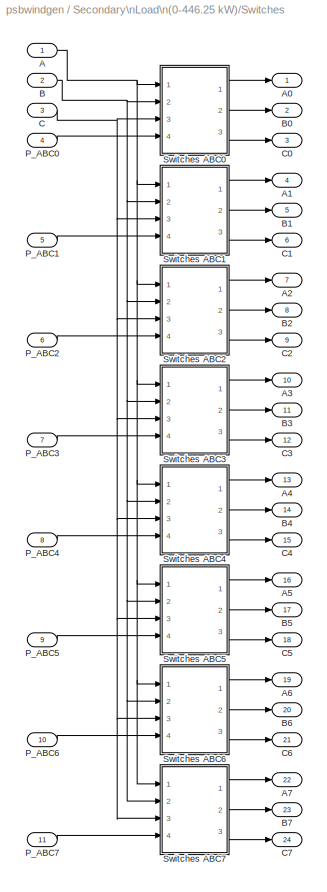
BLOCK [SubSystem] Secondary\nLoad\n(0-446.25 kW)/Switches
  MinAlgLoopOccurrences = off
  Ports = [11, 24]
  RTWSystemCode = Auto
  TreatAsAtomicUnit = off
BLOCK [Inport] Secondary\nLoad\n(0-446.25 kW)/Switches/A
  IconDisplay = Port number
  LatchInput = off
  Port = 1
BLOCK [Outport] Secondary\nLoad\n(0-446.25 kW)/Switches/A0
  BusOutputAsStruct = off
  IconDisplay = Port number
BLOCK [Outport] Secondary\nLoad\n(0-446.25 kW)/Switches/A1
  BusOutputAsStruct = off
  IconDisplay = Port number
  Port = 4
BLOCK [Outport] Secondary\nLoad\n(0-446.25 kW)/Switches/A2
  BusOutputAsStruct = off
  IconDisplay = Port number
  Port = 7
BLOCK [Outport] Secondary\nLoad\n(0-446.25 kW)/Switches/A3
  BusOutputAsStruct = off
  IconDisplay = Port number
  Port = 10
BLOCK [Outport] Secondary\nLoad\n(0-446.25 kW)/Switches/A4
  BusOutputAsStruct = off
  IconDisplay = Port number
  Port = 13
BLOCK [Outport] Secondary\nLoad\n(0-446.25 kW)/Switches/A5
  BusOutputAsStruct = off
  IconDisplay = Port number
  Port = 16
BLOCK [Outport] Secondary\nLoad\n(0-446.25 kW)/Switches/A6
  BusOutputAsStruct = off
  IconDisplay = Port number
  Port = 19
BLOCK [Outport] Secondary\nLoad\n(0-446.25 kW)/Switches/A7
  BusOutputAsStruct = off
  IconDisplay = Port number
  Port = 22
BLOCK [Inport] Secondary\nLoad\n(0-446.25 kW)/Switches/B
  IconDisplay = Port number
  LatchInput = off
  Port = 2
BLOCK [Outport] Secondary\nLoad\n(0-446.25 kW)/Switches/B0
  BusOutputAsStruct = off
  IconDisplay = Port number
  Port = 2
BLOCK [Outport] Secondary\nLoad\n(0-446.25 kW)/Switches/B1
  BusOutputAsStruct = off
  IconDisplay = Port number
  Port = 5
BLOCK [Outport] Secondary\nLoad\n(0-446.25 kW)/Switches/B2
  BusOutputAsStruct = off
  IconDisplay = Port number
  Port = 8
BLOCK [Outport] Secondary\nLoad\n(0-446.25 kW)/Switches/B3
  BusOutputAsStruct = off
  IconDisplay = Port number
  Port = 11
BLOCK [Outport] Secondary\nLoad\n(0-446.25 kW)/Switches/B4
  BusOutputAsStruct = off
  IconDisplay = Port number
  Port = 14
BLOCK [Outport] Secondary\nLoad\n(0-446.25 kW)/Switches/B5
  BusOutputAsStruct = off
  IconDisplay = Port number
  Port = 17
BLOCK [Outport] Secondary\nLoad\n(0-446.25 kW)/Switches/B6
  BusOutputAsStruct = off
  IconDisplay = Port number
  Port = 20
BLOCK [Outport] Secondary\nLoad\n(0-446.25 kW)/Switches/B7
  BusOutputAsStruct = off
  IconDisplay = Port number
  Port = 23
BLOCK [Inport] Secondary\nLoad\n(0-446.25 kW)/Switches/C
  IconDisplay = Port number
  LatchInput = off
  Port = 3
BLOCK [Outport] Secondary\nLoad\n(0-446.25 kW)/Switches/C0
  BusOutputAsStruct = off
  IconDisplay = Port number
  Port = 3
BLOCK [Outport] Secondary\nLoad\n(0-446.25 kW)/Switches/C1
  BusOutputAsStruct = off
  IconDisplay = Port number
  Port = 6
BLOCK [Outport] Secondary\nLoad\n(0-446.25 kW)/Switches/C2
  BusOutputAsStruct = off
  IconDisplay = Port number
  Port = 9
BLOCK [Outport] Secondary\nLoad\n(0-446.25 kW)/Switches/C3
  BusOutputAsStruct = off
  IconDisplay = Port number
  Port = 12
BLOCK [Outport] Secondary\nLoad\n(0-446.25 kW)/Switches/C4
  BusOutputAsStruct = off
  IconDisplay = Port number
  Port = 15
BLOCK [Outport] Secondary\nLoad\n(0-446.25 kW)/Switches/C5
  BusOutputAsStruct = off
  IconDisplay = Port number
  Port = 18
BLOCK [Outport] Secondary\nLoad\n(0-446.25 kW)/Switches/C6
  BusOutputAsStruct = off
  IconDisplay = Port number
  Port = 21
BLOCK [Outport] Secondary\nLoad\n(0-446.25 kW)/Switches/C7
  BusOutputAsStruct = off
  IconDisplay = Port number
  Port = 24
BLOCK [Inport] Secondary\nLoad\n(0-446.25 kW)/Switches/P_ABC0
  IconDisplay = Port number
  LatchInput = off
  Port = 4
BLOCK [Inport] Secondary\nLoad\n(0-446.25 kW)/Switches/P_ABC1
  IconDisplay = Port number
  LatchInput = off
  Port = 5
BLOCK [Inport] Secondary\nLoad\n(0-446.25 kW)/Switches/P_ABC2
  IconDisplay = Port number
  LatchInput = off
  Port = 6
BLOCK [Inport] Secondary\nLoad\n(0-446.25 kW)/Switches/P_ABC3
  IconDisplay = Port number
  LatchInput = off
  Port = 7
BLOCK [Inport] Secondary\nLoad\n(0-446.25 kW)/Switches/P_ABC4
  IconDisplay = Port number
  LatchInput = off
  Port = 8
BLOCK [Inport] Secondary\nLoad\n(0-446.25 kW)/Switches/P_ABC5
  IconDisplay = Port number
  LatchInput = off
  Port = 9
BLOCK [Inport] Secondary\nLoad\n(0-446.25 kW)/Switches/P_ABC6
  IconDisplay = Port number
  LatchInput = off
  Port = 10
BLOCK [Inport] Secondary\nLoad\n(0-446.25 kW)/Switches/P_ABC7
  IconDisplay = Port number
  LatchInput = off
  Port = 11
BLOCK [SubSystem] Secondary\nLoad\n(0-446.25 kW)/Switches/Switches ABC0
  MinAlgLoopOccurrences = off
  Ports = [4, 3]
  RTWSystemCode = Auto
  TreatAsAtomicUnit = off
BLOCK [Inport] Secondary\nLoad\n(0-446.25 kW)/Switches/Switches ABC0/A
  IconDisplay = Port number
  LatchInput = off
  Port = 1
BLOCK [Outport] Secondary\nLoad\n(0-446.25 kW)/Switches/Switches ABC0/A 
  BusOutputAsStruct = off
  IconDisplay = Port number
BLOCK [Inport] Secondary\nLoad\n(0-446.25 kW)/Switches/Switches ABC0/B
  IconDisplay = Port number
  LatchInput = off
  Port = 2
BLOCK [Outport] Secondary\nLoad\n(0-446.25 kW)/Switches/Switches ABC0/B 
  BusOutputAsStruct = off
  IconDisplay = Port number
  Port = 2
BLOCK [Inport] Secondary\nLoad\n(0-446.25 kW)/Switches/Switches ABC0/C
  IconDisplay = Port number
  LatchInput = off
  Port = 3
BLOCK [Outport] Secondary\nLoad\n(0-446.25 kW)/Switches/Switches ABC0/C 
  BusOutputAsStruct = off
  IconDisplay = Port number
  Port = 3
BLOCK [Demux] Secondary\nLoad\n(0-446.25 kW)/Switches/Switches ABC0/Demux
  Outputs = 3
  Ports = [1, 3]
BLOCK [Inport] Secondary\nLoad\n(0-446.25 kW)/Switches/Switches ABC0/P_ABC
  IconDisplay = Port number
  LatchInput = off
  Port = 4
BLOCK [Reference] Secondary\nLoad\n(0-446.25 kW)/Switches/Switches ABC0/Switch A  REF=powerlib2/Power\nElectronics/Ideal Switch
  Cs = Cs_snubber
  IC = Status(1)
  Lon = 0
  PSBOutputType = 10
  Ports = [2, 2]
  Ron = Ron_switch
  Rs = Rs_snubber
  SourceBlock = powerlib2/Power\nElectronics/Ideal Switch
  SourceType = Ideal Switch
  Tag = PoWeRsYsTeMbLoCk
BLOCK [Reference] Secondary\nLoad\n(0-446.25 kW)/Switches/Switches ABC0/Switch B  REF=powerlib2/Power\nElectronics/Ideal Switch
  Cs = Cs_snubber
  IC = Status(1)
  Lon = 0
  PSBOutputType = 10
  Ports = [2, 2]
  Ron = Ron_switch
  Rs = Rs_snubber
  SourceBlock = powerlib2/Power\nElectronics/Ideal Switch
  SourceType = Ideal Switch
  Tag = PoWeRsYsTeMbLoCk
BLOCK [Reference] Secondary\nLoad\n(0-446.25 kW)/Switches/Switches ABC0/Switch C  REF=powerlib2/Power\nElectronics/Ideal Switch
  Cs = Cs_snubber
  IC = Status(1)
  Lon = 0
  PSBOutputType = 10
  Ports = [2, 2]
  Ron = Ron_switch
  Rs = Rs_snubber
  SourceBlock = powerlib2/Power\nElectronics/Ideal Switch
  SourceType = Ideal Switch
  Tag = PoWeRsYsTeMbLoCk
BLOCK [Terminator] Secondary\nLoad\n(0-446.25 kW)/Switches/Switches ABC0/Terminator
BLOCK [Terminator] Secondary\nLoad\n(0-446.25 kW)/Switches/Switches ABC0/Terminator1
BLOCK [Terminator] Secondary\nLoad\n(0-446.25 kW)/Switches/Switches ABC0/Terminator2
BLOCK [SubSystem] Secondary\nLoad\n(0-446.25 kW)/Switches/Switches ABC1
  MinAlgLoopOccurrences = off
  Ports = [4, 3]
  RTWSystemCode = Auto
  TreatAsAtomicUnit = off
BLOCK [Inport] Secondary\nLoad\n(0-446.25 kW)/Switches/Switches ABC1/A
  IconDisplay = Port number
  LatchInput = off
  Port = 1
BLOCK [Outport] Secondary\nLoad\n(0-446.25 kW)/Switches/Switches ABC1/A 
  BusOutputAsStruct = off
  IconDisplay = Port number
BLOCK [Inport] Secondary\nLoad\n(0-446.25 kW)/Switches/Switches ABC1/B
  IconDisplay = Port number
  LatchInput = off
  Port = 2
BLOCK [Outport] Secondary\nLoad\n(0-446.25 kW)/Switches/Switches ABC1/B 
  BusOutputAsStruct = off
  IconDisplay = Port number
  Port = 2
BLOCK [Inport] Secondary\nLoad\n(0-446.25 kW)/Switches/Switches ABC1/C
  IconDisplay = Port number
  LatchInput = off
  Port = 3
BLOCK [Outport] Secondary\nLoad\n(0-446.25 kW)/Switches/Switches ABC1/C 
  BusOutputAsStruct = off
  IconDisplay = Port number
  Port = 3
BLOCK [Demux] Secondary\nLoad\n(0-446.25 kW)/Switches/Switches ABC1/Demux
  Outputs = 3
  Ports = [1, 3]
BLOCK [Inport] Secondary\nLoad\n(0-446.25 kW)/Switches/Switches ABC1/P_ABC
  IconDisplay = Port number
  LatchInput = off
  Port = 4
BLOCK [Reference] Secondary\nLoad\n(0-446.25 kW)/Switches/Switches ABC1/Switch A  REF=powerlib2/Power\nElectronics/Ideal Switch
  Cs = Cs_snubber
  IC = Status(2)
  Lon = 0
  PSBOutputType = 10
  Ports = [2, 2]
  Ron = Ron_switch
  Rs = Rs_snubber
  SourceBlock = powerlib2/Power\nElectronics/Ideal Switch
  SourceType = Ideal Switch
  Tag = PoWeRsYsTeMbLoCk
BLOCK [Reference] Secondary\nLoad\n(0-446.25 kW)/Switches/Switches ABC1/Switch B  REF=powerlib2/Power\nElectronics/Ideal Switch
  Cs = Cs_snubber
  IC = Status(2)
  Lon = 0
  PSBOutputType = 10
  Ports = [2, 2]
  Ron = Ron_switch
  Rs = Rs_snubber
  SourceBlock = powerlib2/Power\nElectronics/Ideal Switch
  SourceType = Ideal Switch
  Tag = PoWeRsYsTeMbLoCk
BLOCK [Reference] Secondary\nLoad\n(0-446.25 kW)/Switches/Switches ABC1/Switch C  REF=powerlib2/Power\nElectronics/Ideal Switch
  Cs = Cs_snubber
  IC = Status(2)
  Lon = 0
  PSBOutputType = 10
  Ports = [2, 2]
  Ron = Ron_switch
  Rs = Rs_snubber
  SourceBlock = powerlib2/Power\nElectronics/Ideal Switch
  SourceType = Ideal Switch
  Tag = PoWeRsYsTeMbLoCk
BLOCK [Terminator] Secondary\nLoad\n(0-446.25 kW)/Switches/Switches ABC1/Terminator
BLOCK [Terminator] Secondary\nLoad\n(0-446.25 kW)/Switches/Switches ABC1/Terminator1
BLOCK [Terminator] Secondary\nLoad\n(0-446.25 kW)/Switches/Switches ABC1/Terminator2
BLOCK [SubSystem] Secondary\nLoad\n(0-446.25 kW)/Switches/Switches ABC2
  MinAlgLoopOccurrences = off
  Ports = [4, 3]
  RTWSystemCode = Auto
  TreatAsAtomicUnit = off
BLOCK [Inport] Secondary\nLoad\n(0-446.25 kW)/Switches/Switches ABC2/A
  IconDisplay = Port number
  LatchInput = off
  Port = 1
BLOCK [Outport] Secondary\nLoad\n(0-446.25 kW)/Switches/Switches ABC2/A 
  BusOutputAsStruct = off
  IconDisplay = Port number
BLOCK [Inport] Secondary\nLoad\n(0-446.25 kW)/Switches/Switches ABC2/B
  IconDisplay = Port number
  LatchInput = off
  Port = 2
BLOCK [Outport] Secondary\nLoad\n(0-446.25 kW)/Switches/Switches ABC2/B 
  BusOutputAsStruct = off
  IconDisplay = Port number
  Port = 2
BLOCK [Inport] Secondary\nLoad\n(0-446.25 kW)/Switches/Switches ABC2/C
  IconDisplay = Port number
  LatchInput = off
  Port = 3
BLOCK [Outport] Secondary\nLoad\n(0-446.25 kW)/Switches/Switches ABC2/C 
  BusOutputAsStruct = off
  IconDisplay = Port number
  Port = 3
BLOCK [Demux] Secondary\nLoad\n(0-446.25 kW)/Switches/Switches ABC2/Demux
  Outputs = 3
  Ports = [1, 3]
BLOCK [Inport] Secondary\nLoad\n(0-446.25 kW)/Switches/Switches ABC2/P_ABC
  IconDisplay = Port number
  LatchInput = off
  Port = 4
BLOCK [Reference] Secondary\nLoad\n(0-446.25 kW)/Switches/Switches ABC2/Switch A  REF=powerlib2/Power\nElectronics/Ideal Switch
  Cs = Cs_snubber
  IC = Status(3)
  Lon = 0
  PSBOutputType = 10
  Ports = [2, 2]
  Ron = Ron_switch
  Rs = Rs_snubber
  SourceBlock = powerlib2/Power\nElectronics/Ideal Switch
  SourceType = Ideal Switch
  Tag = PoWeRsYsTeMbLoCk
BLOCK [Reference] Secondary\nLoad\n(0-446.25 kW)/Switches/Switches ABC2/Switch B  REF=powerlib2/Power\nElectronics/Ideal Switch
  Cs = Cs_snubber
  IC = Status(3)
  Lon = 0
  PSBOutputType = 10
  Ports = [2, 2]
  Ron = Ron_switch
  Rs = Rs_snubber
  SourceBlock = powerlib2/Power\nElectronics/Ideal Switch
  SourceType = Ideal Switch
  Tag = PoWeRsYsTeMbLoCk
BLOCK [Reference] Secondary\nLoad\n(0-446.25 kW)/Switches/Switches ABC2/Switch C  REF=powerlib2/Power\nElectronics/Ideal Switch
  Cs = Cs_snubber
  IC = Status(3)
  Lon = 0
  PSBOutputType = 10
  Ports = [2, 2]
  Ron = Ron_switch
  Rs = Rs_snubber
  SourceBlock = powerlib2/Power\nElectronics/Ideal Switch
  SourceType = Ideal Switch
  Tag = PoWeRsYsTeMbLoCk
BLOCK [Terminator] Secondary\nLoad\n(0-446.25 kW)/Switches/Switches ABC2/Terminator
BLOCK [Terminator] Secondary\nLoad\n(0-446.25 kW)/Switches/Switches ABC2/Terminator1
BLOCK [Terminator] Secondary\nLoad\n(0-446.25 kW)/Switches/Switches ABC2/Terminator2
BLOCK [SubSystem] Secondary\nLoad\n(0-446.25 kW)/Switches/Switches ABC3
  MinAlgLoopOccurrences = off
  Ports = [4, 3]
  RTWSystemCode = Auto
  TreatAsAtomicUnit = off
BLOCK [Inport] Secondary\nLoad\n(0-446.25 kW)/Switches/Switches ABC3/A
  IconDisplay = Port number
  LatchInput = off
  Port = 1
BLOCK [Outport] Secondary\nLoad\n(0-446.25 kW)/Switches/Switches ABC3/A 
  BusOutputAsStruct = off
  IconDisplay = Port number
BLOCK [Inport] Secondary\nLoad\n(0-446.25 kW)/Switches/Switches ABC3/B
  IconDisplay = Port number
  LatchInput = off
  Port = 2
BLOCK [Outport] Secondary\nLoad\n(0-446.25 kW)/Switches/Switches ABC3/B 
  BusOutputAsStruct = off
  IconDisplay = Port number
  Port = 2
BLOCK [Inport] Secondary\nLoad\n(0-446.25 kW)/Switches/Switches ABC3/C
  IconDisplay = Port number
  LatchInput = off
  Port = 3
BLOCK [Outport] Secondary\nLoad\n(0-446.25 kW)/Switches/Switches ABC3/C 
  BusOutputAsStruct = off
  IconDisplay = Port number
  Port = 3
BLOCK [Demux] Secondary\nLoad\n(0-446.25 kW)/Switches/Switches ABC3/Demux
  Outputs = 3
  Ports = [1, 3]
BLOCK [Inport] Secondary\nLoad\n(0-446.25 kW)/Switches/Switches ABC3/P_ABC
  IconDisplay = Port number
  LatchInput = off
  Port = 4
BLOCK [Reference] Secondary\nLoad\n(0-446.25 kW)/Switches/Switches ABC3/Switch A  REF=powerlib2/Power\nElectronics/Ideal Switch
  Cs = Cs_snubber
  IC = Status(4)
  Lon = 0
  PSBOutputType = 10
  Ports = [2, 2]
  Ron = Ron_switch
  Rs = Rs_snubber
  SourceBlock = powerlib2/Power\nElectronics/Ideal Switch
  SourceType = Ideal Switch
  Tag = PoWeRsYsTeMbLoCk
BLOCK [Reference] Secondary\nLoad\n(0-446.25 kW)/Switches/Switches ABC3/Switch B  REF=powerlib2/Power\nElectronics/Ideal Switch
  Cs = Cs_snubber
  IC = Status(4)
  Lon = 0
  PSBOutputType = 10
  Ports = [2, 2]
  Ron = Ron_switch
  Rs = Rs_snubber
  SourceBlock = powerlib2/Power\nElectronics/Ideal Switch
  SourceType = Ideal Switch
  Tag = PoWeRsYsTeMbLoCk
BLOCK [Reference] Secondary\nLoad\n(0-446.25 kW)/Switches/Switches ABC3/Switch C  REF=powerlib2/Power\nElectronics/Ideal Switch
  Cs = Cs_snubber
  IC = Status(4)
  Lon = 0
  PSBOutputType = 10
  Ports = [2, 2]
  Ron = Ron_switch
  Rs = Rs_snubber
  SourceBlock = powerlib2/Power\nElectronics/Ideal Switch
  SourceType = Ideal Switch
  Tag = PoWeRsYsTeMbLoCk
BLOCK [Terminator] Secondary\nLoad\n(0-446.25 kW)/Switches/Switches ABC3/Terminator
BLOCK [Terminator] Secondary\nLoad\n(0-446.25 kW)/Switches/Switches ABC3/Terminator1
BLOCK [Terminator] Secondary\nLoad\n(0-446.25 kW)/Switches/Switches ABC3/Terminator2
BLOCK [SubSystem] Secondary\nLoad\n(0-446.25 kW)/Switches/Switches ABC4
  MinAlgLoopOccurrences = off
  Ports = [4, 3]
  RTWSystemCode = Auto
  TreatAsAtomicUnit = off
BLOCK [Inport] Secondary\nLoad\n(0-446.25 kW)/Switches/Switches ABC4/A
  IconDisplay = Port number
  LatchInput = off
  Port = 1
BLOCK [Outport] Secondary\nLoad\n(0-446.25 kW)/Switches/Switches ABC4/A 
  BusOutputAsStruct = off
  IconDisplay = Port number
BLOCK [Inport] Secondary\nLoad\n(0-446.25 kW)/Switches/Switches ABC4/B
  IconDisplay = Port number
  LatchInput = off
  Port = 2
BLOCK [Outport] Secondary\nLoad\n(0-446.25 kW)/Switches/Switches ABC4/B 
  BusOutputAsStruct = off
  IconDisplay = Port number
  Port = 2
BLOCK [Inport] Secondary\nLoad\n(0-446.25 kW)/Switches/Switches ABC4/C
  IconDisplay = Port number
  LatchInput = off
  Port = 3
BLOCK [Outport] Secondary\nLoad\n(0-446.25 kW)/Switches/Switches ABC4/C 
  BusOutputAsStruct = off
  IconDisplay = Port number
  Port = 3
BLOCK [Demux] Secondary\nLoad\n(0-446.25 kW)/Switches/Switches ABC4/Demux
  Outputs = 3
  Ports = [1, 3]
BLOCK [Inport] Secondary\nLoad\n(0-446.25 kW)/Switches/Switches ABC4/P_ABC
  IconDisplay = Port number
  LatchInput = off
  Port = 4
BLOCK [Reference] Secondary\nLoad\n(0-446.25 kW)/Switches/Switches ABC4/Switch A  REF=powerlib2/Power\nElectronics/Ideal Switch
  Cs = Cs_snubber
  IC = Status(5)
  Lon = 0
  PSBOutputType = 10
  Ports = [2, 2]
  Ron = Ron_switch
  Rs = Rs_snubber
  SourceBlock = powerlib2/Power\nElectronics/Ideal Switch
  SourceType = Ideal Switch
  Tag = PoWeRsYsTeMbLoCk
BLOCK [Reference] Secondary\nLoad\n(0-446.25 kW)/Switches/Switches ABC4/Switch B  REF=powerlib2/Power\nElectronics/Ideal Switch
  Cs = Cs_snubber
  IC = Status(5)
  Lon = 0
  PSBOutputType = 10
  Ports = [2, 2]
  Ron = Ron_switch
  Rs = Rs_snubber
  SourceBlock = powerlib2/Power\nElectronics/Ideal Switch
  SourceType = Ideal Switch
  Tag = PoWeRsYsTeMbLoCk
BLOCK [Reference] Secondary\nLoad\n(0-446.25 kW)/Switches/Switches ABC4/Switch C  REF=powerlib2/Power\nElectronics/Ideal Switch
  Cs = Cs_snubber
  IC = Status(5)
  Lon = 0
  PSBOutputType = 10
  Ports = [2, 2]
  Ron = Ron_switch
  Rs = Rs_snubber
  SourceBlock = powerlib2/Power\nElectronics/Ideal Switch
  SourceType = Ideal Switch
  Tag = PoWeRsYsTeMbLoCk
BLOCK [Terminator] Secondary\nLoad\n(0-446.25 kW)/Switches/Switches ABC4/Terminator
BLOCK [Terminator] Secondary\nLoad\n(0-446.25 kW)/Switches/Switches ABC4/Terminator1
BLOCK [Terminator] Secondary\nLoad\n(0-446.25 kW)/Switches/Switches ABC4/Terminator2
BLOCK [SubSystem] Secondary\nLoad\n(0-446.25 kW)/Switches/Switches ABC5
  MinAlgLoopOccurrences = off
  Ports = [4, 3]
  RTWSystemCode = Auto
  TreatAsAtomicUnit = off
BLOCK [Inport] Secondary\nLoad\n(0-446.25 kW)/Switches/Switches ABC5/A
  IconDisplay = Port number
  LatchInput = off
  Port = 1
BLOCK [Outport] Secondary\nLoad\n(0-446.25 kW)/Switches/Switches ABC5/A 
  BusOutputAsStruct = off
  IconDisplay = Port number
BLOCK [Inport] Secondary\nLoad\n(0-446.25 kW)/Switches/Switches ABC5/B
  IconDisplay = Port number
  LatchInput = off
  Port = 2
BLOCK [Outport] Secondary\nLoad\n(0-446.25 kW)/Switches/Switches ABC5/B 
  BusOutputAsStruct = off
  IconDisplay = Port number
  Port = 2
BLOCK [Inport] Secondary\nLoad\n(0-446.25 kW)/Switches/Switches ABC5/C
  IconDisplay = Port number
  LatchInput = off
  Port = 3
BLOCK [Outport] Secondary\nLoad\n(0-446.25 kW)/Switches/Switches ABC5/C 
  BusOutputAsStruct = off
  IconDisplay = Port number
  Port = 3
BLOCK [Demux] Secondary\nLoad\n(0-446.25 kW)/Switches/Switches ABC5/Demux
  Outputs = 3
  Ports = [1, 3]
BLOCK [Inport] Secondary\nLoad\n(0-446.25 kW)/Switches/Switches ABC5/P_ABC
  IconDisplay = Port number
  LatchInput = off
  Port = 4
BLOCK [Reference] Secondary\nLoad\n(0-446.25 kW)/Switches/Switches ABC5/Switch A  REF=powerlib2/Power\nElectronics/Ideal Switch
  Cs = Cs_snubber
  IC = Status(6)
  Lon = 0
  PSBOutputType = 10
  Ports = [2, 2]
  Ron = Ron_switch
  Rs = Rs_snubber
  SourceBlock = powerlib2/Power\nElectronics/Ideal Switch
  SourceType = Ideal Switch
  Tag = PoWeRsYsTeMbLoCk
BLOCK [Reference] Secondary\nLoad\n(0-446.25 kW)/Switches/Switches ABC5/Switch B  REF=powerlib2/Power\nElectronics/Ideal Switch
  Cs = Cs_snubber
  IC = Status(6)
  Lon = 0
  PSBOutputType = 10
  Ports = [2, 2]
  Ron = Ron_switch
  Rs = Rs_snubber
  SourceBlock = powerlib2/Power\nElectronics/Ideal Switch
  SourceType = Ideal Switch
  Tag = PoWeRsYsTeMbLoCk
BLOCK [Reference] Secondary\nLoad\n(0-446.25 kW)/Switches/Switches ABC5/Switch C  REF=powerlib2/Power\nElectronics/Ideal Switch
  Cs = Cs_snubber
  IC = Status(6)
  Lon = 0
  PSBOutputType = 10
  Ports = [2, 2]
  Ron = Ron_switch
  Rs = Rs_snubber
  SourceBlock = powerlib2/Power\nElectronics/Ideal Switch
  SourceType = Ideal Switch
  Tag = PoWeRsYsTeMbLoCk
BLOCK [Terminator] Secondary\nLoad\n(0-446.25 kW)/Switches/Switches ABC5/Terminator
BLOCK [Terminator] Secondary\nLoad\n(0-446.25 kW)/Switches/Switches ABC5/Terminator1
BLOCK [Terminator] Secondary\nLoad\n(0-446.25 kW)/Switches/Switches ABC5/Terminator2
BLOCK [SubSystem] Secondary\nLoad\n(0-446.25 kW)/Switches/Switches ABC6
  MinAlgLoopOccurrences = off
  Ports = [4, 3]
  RTWSystemCode = Auto
  TreatAsAtomicUnit = off
BLOCK [Inport] Secondary\nLoad\n(0-446.25 kW)/Switches/Switches ABC6/A
  IconDisplay = Port number
  LatchInput = off
  Port = 1
BLOCK [Outport] Secondary\nLoad\n(0-446.25 kW)/Switches/Switches ABC6/A 
  BusOutputAsStruct = off
  IconDisplay = Port number
BLOCK [Inport] Secondary\nLoad\n(0-446.25 kW)/Switches/Switches ABC6/B
  IconDisplay = Port number
  LatchInput = off
  Port = 2
BLOCK [Outport] Secondary\nLoad\n(0-446.25 kW)/Switches/Switches ABC6/B 
  BusOutputAsStruct = off
  IconDisplay = Port number
  Port = 2
BLOCK [Inport] Secondary\nLoad\n(0-446.25 kW)/Switches/Switches ABC6/C
  IconDisplay = Port number
  LatchInput = off
  Port = 3
BLOCK [Outport] Secondary\nLoad\n(0-446.25 kW)/Switches/Switches ABC6/C 
  BusOutputAsStruct = off
  IconDisplay = Port number
  Port = 3
BLOCK [Demux] Secondary\nLoad\n(0-446.25 kW)/Switches/Switches ABC6/Demux
  Outputs = 3
  Ports = [1, 3]
BLOCK [Inport] Secondary\nLoad\n(0-446.25 kW)/Switches/Switches ABC6/P_ABC
  IconDisplay = Port number
  LatchInput = off
  Port = 4
BLOCK [Reference] Secondary\nLoad\n(0-446.25 kW)/Switches/Switches ABC6/Switch A  REF=powerlib2/Power\nElectronics/Ideal Switch
  Cs = Cs_snubber
  IC = Status(7)
  Lon = 0
  PSBOutputType = 10
  Ports = [2, 2]
  Ron = Ron_switch
  Rs = Rs_snubber
  SourceBlock = powerlib2/Power\nElectronics/Ideal Switch
  SourceType = Ideal Switch
  Tag = PoWeRsYsTeMbLoCk
BLOCK [Reference] Secondary\nLoad\n(0-446.25 kW)/Switches/Switches ABC6/Switch B  REF=powerlib2/Power\nElectronics/Ideal Switch
  Cs = Cs_snubber
  IC = Status(7)
  Lon = 0
  PSBOutputType = 10
  Ports = [2, 2]
  Ron = Ron_switch
  Rs = Rs_snubber
  SourceBlock = powerlib2/Power\nElectronics/Ideal Switch
  SourceType = Ideal Switch
  Tag = PoWeRsYsTeMbLoCk
BLOCK [Reference] Secondary\nLoad\n(0-446.25 kW)/Switches/Switches ABC6/Switch C  REF=powerlib2/Power\nElectronics/Ideal Switch
  Cs = Cs_snubber
  IC = Status(7)
  Lon = 0
  PSBOutputType = 10
  Ports = [2, 2]
  Ron = Ron_switch
  Rs = Rs_snubber
  SourceBlock = powerlib2/Power\nElectronics/Ideal Switch
  SourceType = Ideal Switch
  Tag = PoWeRsYsTeMbLoCk
BLOCK [Terminator] Secondary\nLoad\n(0-446.25 kW)/Switches/Switches ABC6/Terminator
BLOCK [Terminator] Secondary\nLoad\n(0-446.25 kW)/Switches/Switches ABC6/Terminator1
BLOCK [Terminator] Secondary\nLoad\n(0-446.25 kW)/Switches/Switches ABC6/Terminator2
BLOCK [SubSystem] Secondary\nLoad\n(0-446.25 kW)/Switches/Switches ABC7
  MinAlgLoopOccurrences = off
  Ports = [4, 3]
  RTWSystemCode = Auto
  TreatAsAtomicUnit = off
BLOCK [Inport] Secondary\nLoad\n(0-446.25 kW)/Switches/Switches ABC7/A
  IconDisplay = Port number
  LatchInput = off
  Port = 1
BLOCK [Outport] Secondary\nLoad\n(0-446.25 kW)/Switches/Switches ABC7/A 
  BusOutputAsStruct = off
  IconDisplay = Port number
BLOCK [Inport] Secondary\nLoad\n(0-446.25 kW)/Switches/Switches ABC7/B
  IconDisplay = Port number
  LatchInput = off
  Port = 2
BLOCK [Outport] Secondary\nLoad\n(0-446.25 kW)/Switches/Switches ABC7/B 
  BusOutputAsStruct = off
  IconDisplay = Port number
  Port = 2
BLOCK [Inport] Secondary\nLoad\n(0-446.25 kW)/Switches/Switches ABC7/C
  IconDisplay = Port number
  LatchInput = off
  Port = 3
BLOCK [Outport] Secondary\nLoad\n(0-446.25 kW)/Switches/Switches ABC7/C 
  BusOutputAsStruct = off
  IconDisplay = Port number
  Port = 3
BLOCK [Demux] Secondary\nLoad\n(0-446.25 kW)/Switches/Switches ABC7/Demux
  Outputs = 3
  Ports = [1, 3]
BLOCK [Inport] Secondary\nLoad\n(0-446.25 kW)/Switches/Switches ABC7/P_ABC
  IconDisplay = Port number
  LatchInput = off
  Port = 4
BLOCK [Reference] Secondary\nLoad\n(0-446.25 kW)/Switches/Switches ABC7/Switch A  REF=powerlib2/Power\nElectronics/Ideal Switch
  Cs = Cs_snubber
  IC = Status(8)
  Lon = 0
  PSBOutputType = 10
  Ports = [2, 2]
  Ron = Ron_switch
  Rs = Rs_snubber
  SourceBlock = powerlib2/Power\nElectronics/Ideal Switch
  SourceType = Ideal Switch
  Tag = PoWeRsYsTeMbLoCk
BLOCK [Reference] Secondary\nLoad\n(0-446.25 kW)/Switches/Switches ABC7/Switch B  REF=powerlib2/Power\nElectronics/Ideal Switch
  Cs = Cs_snubber
  IC = Status(8)
  Lon = 0
  PSBOutputType = 10
  Ports = [2, 2]
  Ron = Ron_switch
  Rs = Rs_snubber
  SourceBlock = powerlib2/Power\nElectronics/Ideal Switch
  SourceType = Ideal Switch
  Tag = PoWeRsYsTeMbLoCk
BLOCK [Reference] Secondary\nLoad\n(0-446.25 kW)/Switches/Switches ABC7/Switch C  REF=powerlib2/Power\nElectronics/Ideal Switch
  Cs = Cs_snubber
  IC = Status(8)
  Lon = 0
  PSBOutputType = 10
  Ports = [2, 2]
  Ron = Ron_switch
  Rs = Rs_snubber
  SourceBlock = powerlib2/Power\nElectronics/Ideal Switch
  SourceType = Ideal Switch
  Tag = PoWeRsYsTeMbLoCk
BLOCK [Terminator] Secondary\nLoad\n(0-446.25 kW)/Switches/Switches ABC7/Terminator
BLOCK [Terminator] Secondary\nLoad\n(0-446.25 kW)/Switches/Switches ABC7/Terminator1
BLOCK [Terminator] Secondary\nLoad\n(0-446.25 kW)/Switches/Switches ABC7/Terminator2
BLOCK [SubSystem] Subsystem
  MaskDisplay = disp('Double click to display\\nTurbine characteristics')
  MaskIconFrame = on
  MaskIconOpaque = on
  MaskIconRotate = none
  MaskIconUnits = autoscale
  MinAlgLoopOccurrences = off
  OpenFcn = open('psbwindgen_turb.fig')
  Ports = []
  RTWSystemCode = Auto
  TreatAsAtomicUnit = off
BLOCK [Reference] Synchronous Condenser\n 480V 300kVA  REF=powerlib2/Machines/Synchronous Machine\npu Standard
  LoadFlowParameters = [2 0 0 0 0]
  PSBOutputType = 1110
  Ports = [2, 4]
  ShowPortLabels = on
  SourceBlock = powerlib2/Machines/Synchronous Machine\npu Standard
  SourceType = Synchronous Machine
  Tag = PoWeRsYsTeMbLoCk
  dAxisT = Open-circuit
  iounits = 0.5
  qAxisT = Open-circuit
  rotorType = Salient-pole
  x1 = [ 300e3 480 60 ]
  x2 = [ 3.23, 0.21, 0.15, 2.79, 0.37, 0.09]
  x2b = [ 3.23, 0.21, 0.15, 2.79, 1.03, 0.37, 0.09 ]
  x3 = [ 0.08  0.019  0.004 ]
  x3a = [ 1.7  0.008  0.004]
  x3b = [ 1.7, 0.008, 0.213, 0.004 ]
  x3c = [  1.7 0.008 0.051266  ]
  x3d = [ 8.0, 0.03, 0.3371, 0.0295 ]
  x3e = [ 1.3201, 0.023, 1.0, 0.07 ]
  x3f = [  0.08  0.019 0.051266  ]
  x3g = [ 1.3201, 0.0231, 0.3371, 0.0295 ]
  x4 = 0.017
  x5 = [ 1, 0, 2 ]
  x6 = [0 -89.2146 0.827 0.827 0.827 -86.4 153.6 33.6 2.71455]
  x7 = off
  x8 = [0.6404,0.7127,0.8441,0.9214,0.9956,1.082,1.19,1.316,1.457;0.7,0.7698,0.8872,0.9466,0.9969,1.046,1.1,1.151,1.201]
BLOCK [SubSystem] WT
  AncestorBlock = powerlib2/Measurements/Three-Phase\nV-I Measurement
  CloseFcn = %3phaseVImeasurement
  CopyFcn = powericon('psbloadfunction',gcbh,'3-Phase VI Measurement','VerifyPhasor');
  InitFcn = powericon('checksum',bdroot)
  LoadFcn = powericon('psbloadfunction',gcbh,'3-Phase VI Measurement','');
  MaskEnableString = on,on,on,on,on,on,on,on,on,on,off,on,off,on
  MaskHelp = web(psbhelp)
  MaskIconFrame = on
  MaskIconOpaque = on
  MaskIconRotate = none
  MaskIconUnits = autoscale
  MaskSelfModifiable = on
  MaskStyleString = popup(no|phase-to-ground|phase-to-phase),checkbox,edit,checkbox,edit,popup(no|yes),checkbox,edit,checkbox,edit,popup(Complex|Real-Imag|Magnitude-Angle|Magnitude),checkbox,edit,edit
  MaskTabNameString = ,,,,,,,,,,,,,
  MaskToolTipString = on,on,on,on,on,on,on,on,on,on,on,on,on,on
  MaskTunableValueString = off,off,off,on,on,off,off,off,on,on,on,on,on,on
  MaskType = 3-Phase VI Measurement
  MaskValueString = phase-to-ground|on|Vabc_WT|on|480|yes|on|Iabc_WT|on|275e3|Magnitude|off|0|11100
  MaskVarAliasString = ,,,,,,,,,,,,,
  MaskVariables = VChoice=@1;ualv=@2;labelV=&3;Vpu=@4;Vbase=@5;IChoice=@6;ualc=@7;labelC=&8;Ppu=@9;Pbase=@10;OutputType=@11;PhasorSimulation=@12;PSBequivalent=@13;PSBOutputType=&14;
  MaskVisibilityString = on,on,on,on,on,on,on,on,on,on,on,off,off,off
  MinAlgLoopOccurrences = off
  Ports = [3, 3]
  RTWSystemCode = Auto
  Tag = PoWeRsYsTeMmEaSuReMeNt
  TreatAsAtomicUnit = off
BLOCK [Inport] WT/A
  IconDisplay = Port number
  LatchInput = off
  Port = 1
BLOCK [Outport] WT/A 
  BusOutputAsStruct = off
  IconDisplay = Port number
BLOCK [Inport] WT/B
  IconDisplay = Port number
  LatchInput = off
  Port = 2
BLOCK [Outport] WT/B 
  BusOutputAsStruct = off
  IconDisplay = Port number
  Port = 2
BLOCK [Inport] WT/C
  IconDisplay = Port number
  LatchInput = off
  Port = 3
BLOCK [Outport] WT/C 
  BusOutputAsStruct = off
  IconDisplay = Port number
  Port = 3
BLOCK [Constant] WT/Constant
  Value = NaN
BLOCK [Constant] WT/Constant1
  Value = NaN
BLOCK [Constant] WT/Constant2
  Value = NaN
BLOCK [SubSystem] WT/Ia
  AncestorBlock = powerlib2/Measurements/Three-Phase\nV-I Measurement/Ia
  MinAlgLoopOccurrences = off
  Ports = [0, 1]
  RTWSystemCode = Auto
  TreatAsAtomicUnit = off
BLOCK [Outport] WT/Ia/Out1
  BusOutputAsStruct = off
  IconDisplay = Port number
BLOCK [From] WT/Ia/source
  DialogController = Simulink.DDGSource
  GotoTag = tp575138
BLOCK [Goto] WT/Iabc
  DialogController = Simulink.DDGSource
  GotoTag = Iabc_WT
  TagVisibility = global
BLOCK [SubSystem] WT/Ib
  AncestorBlock = powerlib2/Measurements/Three-Phase\nV-I Measurement/Ib
  MinAlgLoopOccurrences = off
  Ports = [0, 1]
  RTWSystemCode = Auto
  TreatAsAtomicUnit = off
BLOCK [Outport] WT/Ib/Out1
  BusOutputAsStruct = off
  IconDisplay = Port number
BLOCK [From] WT/Ib/source
  DialogController = Simulink.DDGSource
  GotoTag = tp575139
BLOCK [SubSystem] WT/Ic
  AncestorBlock = powerlib2/Measurements/Three-Phase\nV-I Measurement/Ic
  MinAlgLoopOccurrences = off
  Ports = [0, 1]
  RTWSystemCode = Auto
  TreatAsAtomicUnit = off
BLOCK [Outport] WT/Ic/Out1
  BusOutputAsStruct = off
  IconDisplay = Port number
BLOCK [From] WT/Ic/source
  DialogController = Simulink.DDGSource
  GotoTag = tp575140
BLOCK [Gain] WT/Ki
  Gain = Ki
BLOCK [Gain] WT/Kv
  Gain = Kv
BLOCK [Mux] WT/Mux1
  DisplayOption = bar
  Inputs = 6
  Ports = [6, 1]
BLOCK [Mux] WT/Mux3
  DisplayOption = bar
  Inputs = 2
  Ports = [2, 1]
BLOCK [Reference] WT/Phasor Measurements  REF=powerlib2/Measurements/Three-Phase\nV-I Measurement/Phasor Measurements
  DataTypeOverride = UseLocalSettings
  MinMaxOverflowLogging = UseLocalSettings
  Permissions = ReadWrite
  Ports = [1, 1, 1]
  RTWFcnNameOpts = Auto
  RTWFileNameOpts = Auto
  RTWSystemCode = Auto
  ShowPortLabels = on
  SimViewingDevice = off
  SourceBlock = powerlib2/Measurements/Three-Phase\nV-I Measurement/Phasor Measurements
  SourceType = SubSystem
  TreatAsAtomicUnit = on
BLOCK [Selector] WT/Selector I
  Elements = SelectionModeI
  InputPortWidth = length(OutputSelection)+6
  Ports = [1, 1]
BLOCK [Selector] WT/Selector V
  Elements = SelectionModeV
  InputPortWidth = length(OutputSelection)+6
  Ports = [1, 1]
BLOCK [Constant] WT/Simulation method
  Value = PhasorSimulation
BLOCK [Terminator] WT/Terminator
BLOCK [Terminator] WT/Terminator1
BLOCK [Terminator] WT/Terminator2
BLOCK [Goto] WT/Vabc
  DialogController = Simulink.DDGSource
  GotoTag = Vabc_WT
  TagVisibility = global
BLOCK [SubSystem] WT/Vb
  AncestorBlock = powerlib2/Measurements/Three-Phase\nV-I Measurement/Vb
  MinAlgLoopOccurrences = off
  Ports = [0, 1]
  RTWSystemCode = Auto
  TreatAsAtomicUnit = off
BLOCK [Outport] WT/Vb/Out1
  BusOutputAsStruct = off
  IconDisplay = Port number
BLOCK [From] WT/Vb/source
  DialogController = Simulink.DDGSource
  GotoTag = tp575136
BLOCK [SubSystem] WT/Vc
  AncestorBlock = powerlib2/Measurements/Three-Phase\nV-I Measurement/Vc
  MinAlgLoopOccurrences = off
  Ports = [0, 1]
  RTWSystemCode = Auto
  TreatAsAtomicUnit = off
BLOCK [Outport] WT/Vc/Out1
  BusOutputAsStruct = off
  IconDisplay = Port number
BLOCK [From] WT/Vc/source
  DialogController = Simulink.DDGSource
  GotoTag = tp575137
BLOCK [From] WT/source
  DialogController = Simulink.DDGSource
  GotoTag = tp575135
BLOCK [SubSystem] Wind Turbine
  MinAlgLoopOccurrences = off
  Ports = [2, 1]
  RTWSystemCode = Auto
  TreatAsAtomicUnit = off
BLOCK [Gain] Wind Turbine/1800 rpm
  Gain = 1800
BLOCK [Constant] Wind Turbine/Constant3
  Value = 1e-6
BLOCK [Gain] Wind Turbine/Gain
  Gain = -1
BLOCK [Goto] Wind Turbine/Goto3
  DialogController = Simulink.DDGSource
  GotoTag = w_ASM
  TagVisibility = global
BLOCK [Lookup2D] Wind Turbine/P(w_Wind,w_Turb)
  ColumnIndex = [0 571.55 685.8 800.15 914.4 1028.8 1143.1 1257.4 1371.7 1486 1600.3 1714.6 1828.9 1943.2 2057.5 2171.8 2286.1 2400.5 2514.7 2629.1 2743.3 2857.7 2971.9 3086.3 3200.5 3314.9 3429.2]
  DialogController = Simulink.DDGSource
  OutputValues = psbwindgen_char
  RowIndex = [0 5 6 7 8 9 10 11 12]
BLOCK [Product] Wind Turbine/Product
  Inputs = */
  Ports = [2, 1]
  RndMeth = Floor
BLOCK [Switch] Wind Turbine/Switch
  Threshold = 1e-6
BLOCK [Outport] Wind Turbine/Tm
  BusOutputAsStruct = off
  IconDisplay = Port number
BLOCK [Inport] Wind Turbine/w_Turb
  IconDisplay = Port number
  LatchInput = off
  Port = 2
BLOCK [Inport] Wind Turbine/w_Wind
  IconDisplay = Port number
  LatchInput = off
  Port = 1
BLOCK [Constant] Wind speed (m//s)
  Value = 10
ANNOTATION (root): Consumer Load
ANNOTATION (root): Double click on the Help button (?) for details
ANNOTATION (root): The 'PreLoadFcn' of psbwindgen.mdl automatically \nloads initial contions (xInitial) \nand wind turbine characteristics (psbwindgen_char)\nin your workspace
ANNOTATION (root): Wind-Turbine Asynchronous Generator in Isolated Network
ANNOTATION Frequency Regulator/Sampling system: T_ABC0
ANNOTATION Frequency Regulator/Sampling system: T_ABC1
ANNOTATION Frequency Regulator/Sampling system: T_ABC2
ANNOTATION Frequency Regulator/Sampling system: T_ABC3
ANNOTATION Frequency Regulator/Sampling system: T_ABC4
ANNOTATION Frequency Regulator/Sampling system: T_ABC5
ANNOTATION Frequency Regulator/Sampling system: T_ABC6
ANNOTATION Frequency Regulator/Sampling system: T_ABC7
ANNOTATION Frequency Regulator/Sampling system: Ta0_7
ANNOTATION Frequency Regulator/Sampling system: Tb0_7
ANNOTATION Frequency Regulator/Sampling system: Tc0_7
ANNOTATION More Info: A generic model of the High-Penetration, No Storage, Wind-Diesel (HPNSWD) system is presented in this demo [1]. \nThis technology was developed by Hydro-Quebec to reduce the cost of supplying electricity in remote northern communities[2].\nThe optimal wind penetration (installed wind capacity/peak electrical demand) for this system depends on the site delivery cost of fuel\nand available wind reso...<+2215ch>
ANNOTATION More Info: Circuit Description
ANNOTATION More Info: Demonstration
ANNOTATION More Info: For the demo, the wind speed (10m/s) is such that the wind turbine produces enough power to supply the load. The diesel-generator (not simulated) is stopped\nand the the synchronous machine operates as a synchronous condenser with its mechanical power input (Pm) set at zero.\nThe demo illustrates the dynamic performance of the frequency regulation system when an additional 25 kW customer load is s...<+963ch>
ANNOTATION More Info: R. Reid, B. Saulnier, R. Gagnon; Hydro-Quebec (IREQ)
ANNOTATION More Info: References
ANNOTATION More Info: Wind-Turbine Asynchronous Generator in Isolated Network
ANNOTATION More Info: [1] R. Gagnon, B. Saulnier, G. Sybille, P. Giroux; \"Modeling of a Generic High-Penetration No-Storage Wind-Diesel System Using Matlab/Power System Blockset\" \n2002 Global Windpower Conference, April 2002, Paris, France\n[2] B. Saulnier, A.O. Barry, B. Dube, R. Reid; \"Design and Development of a Regulation and Control System for the High-Penetration No-Storage Wind/Diesel\nScheme\" European Comm...<+258ch>
LINE 0 kW:1 -> Synchronous Condenser\n 480V 300kVA:1
LINE 3-Phase Breaker:1 -> Load\n25 kW:1
LINE 3-Phase Breaker:2 -> Load\n25 kW:2
LINE 3-Phase Breaker:3 -> Load\n25 kW:3
LINE Asynchronous Generator\n480V 275kVA:1 -> Machines\nMeasurement\nDemux:1
LINE Excitation/Constant3:1 -> Excitation/Excitation\nSystem:1
LINE Excitation/Demux:1 -> Excitation/Excitation\nSystem:3
LINE Excitation/Demux:2 -> Excitation/Excitation\nSystem:2
LINE Excitation/Excitation\nSystem:1 -> Excitation/Vf:1
LINE Excitation/Gain:1 -> Excitation/Goto1:1
LINE Excitation/Ground:1 -> Excitation/Excitation\nSystem:4
LINE Excitation/Machines\nMeasurement\nDemux:1 -> Excitation/Demux:1
LINE Excitation/Machines\nMeasurement\nDemux:2 -> Excitation/Gain:1
LINE Excitation/m:1 -> Excitation/Machines\nMeasurement\nDemux:1
LINE Excitation:1 -> Synchronous Condenser\n 480V 300kVA:2
LINE Frequency Regulator/3-phase PLL:1 -> Frequency Regulator/Sum:1
LINE Frequency Regulator/3-phase PLL:2 -> Frequency Regulator/Terminator:1
LINE Frequency Regulator/3-phase PLL:3 -> Frequency Regulator/Terminator1:1
LINE Frequency Regulator/Frequency:1 -> Frequency Regulator/Sum:2
LINE Frequency Regulator/Integrator:1 -> Frequency Regulator/Sum1:1
LINE Frequency Regulator/PD/0, 255:1 -> Frequency Regulator/PD/Out:1
LINE Frequency Regulator/PD/Gain I:1 -> Frequency Regulator/PD/Transfer Fcn:1
LINE Frequency Regulator/PD/Gain P:1 -> Frequency Regulator/PD/Sum:1
NET Frequency Regulator/PD/In:1 -> Frequency Regulator/PD/Gain I:1, Frequency Regulator/PD/Gain P:1
LINE Frequency Regulator/PD/Sum:1 -> Frequency Regulator/PD/0, 255:1
LINE Frequency Regulator/PD/Transfer Fcn:1 -> Frequency Regulator/PD/Sum:2
LINE Frequency Regulator/PD:1 -> Frequency Regulator/Pulses\nDecoder:1
LINE Frequency Regulator/Phref:1 -> Frequency Regulator/Sum1:2
LINE Frequency Regulator/Pulses\nDecoder/Code:1 -> Frequency Regulator/Pulses\nDecoder/Product:1
LINE Frequency Regulator/Pulses\nDecoder/Constant6:1 -> Frequency Regulator/Pulses\nDecoder/Math\nFunction:2
LINE Frequency Regulator/Pulses\nDecoder/Constant:1 -> Frequency Regulator/Pulses\nDecoder/Product:2
LINE Frequency Regulator/Pulses\nDecoder/Math\nFunction:1 -> Frequency Regulator/Pulses\nDecoder/Pulses:1
LINE Frequency Regulator/Pulses\nDecoder/Product:1 -> Frequency Regulator/Pulses\nDecoder/Rounding\nFunction:1
LINE Frequency Regulator/Pulses\nDecoder/Rounding\nFunction:1 -> Frequency Regulator/Pulses\nDecoder/Math\nFunction:1
LINE Frequency Regulator/Pulses\nDecoder:1 -> Frequency Regulator/Sampling system:1
LINE Frequency Regulator/Sampling system/ Bit ABC4:1 -> Frequency Regulator/Sampling system/Mux1:5
NET Frequency Regulator/Sampling system/BITA0_7:1 -> Frequency Regulator/Sampling system/Switch1:1, Frequency Regulator/Sampling system/Switch2:1, Frequency Regulator/Sampling system/Switch:1
LINE Frequency Regulator/Sampling system/Bit ABC0:1 -> Frequency Regulator/Sampling system/Mux1:1
LINE Frequency Regulator/Sampling system/Bit ABC1:1 -> Frequency Regulator/Sampling system/Mux1:2
LINE Frequency Regulator/Sampling system/Bit ABC2:1 -> Frequency Regulator/Sampling system/Mux1:3
LINE Frequency Regulator/Sampling system/Bit ABC3:1 -> Frequency Regulator/Sampling system/Mux1:4
LINE Frequency Regulator/Sampling system/Bit ABC5:1 -> Frequency Regulator/Sampling system/Mux1:6
LINE Frequency Regulator/Sampling system/Bit ABC6:1 -> Frequency Regulator/Sampling system/Mux1:7
LINE Frequency Regulator/Sampling system/Bit ABC7:1 -> Frequency Regulator/Sampling system/Mux1:8
LINE Frequency Regulator/Sampling system/Demux:1 -> Frequency Regulator/Sampling system/Memory3:1
LINE Frequency Regulator/Sampling system/Demux:2 -> Frequency Regulator/Sampling system/Memory4:1
LINE Frequency Regulator/Sampling system/Demux:3 -> Frequency Regulator/Sampling system/Memory5:1
LINE Frequency Regulator/Sampling system/From1:1 -> Frequency Regulator/Sampling system/Demux:1
LINE Frequency Regulator/Sampling system/Memory1:1 -> Frequency Regulator/Sampling system/Switch1:3
LINE Frequency Regulator/Sampling system/Memory2:1 -> Frequency Regulator/Sampling system/Switch2:3
LINE Frequency Regulator/Sampling system/Memory3:1 -> Frequency Regulator/Sampling system/Zero crossing:1
LINE Frequency Regulator/Sampling system/Memory4:1 -> Frequency Regulator/Sampling system/Zero crossing1:1
LINE Frequency Regulator/Sampling system/Memory5:1 -> Frequency Regulator/Sampling system/Zero crossing2:1
LINE Frequency Regulator/Sampling system/Memory:1 -> Frequency Regulator/Sampling system/Switch:3
LINE Frequency Regulator/Sampling system/Mux1:1 -> Frequency Regulator/Sampling system/Pulses_ABC0_7:1
LINE Frequency Regulator/Sampling system/Mux:1 -> Frequency Regulator/Sampling system/Selector:1
NET Frequency Regulator/Sampling system/Selector:1 -> Frequency Regulator/Sampling system/ Bit ABC4:1, Frequency Regulator/Sampling system/Bit ABC0:1, Frequency Regulator/Sampling system/Bit ABC1:1, Frequency Regulator/Sampling system/Bit ABC2:1, Frequency Regulator/Sampling system/Bit ABC3:1, Frequency Regulator/Sampling system/Bit ABC5:1, Frequency Regulator/Sampling system/Bit ABC6:1, Frequency Regulator/Sampling system/Bit ABC7:1
NET Frequency Regulator/Sampling system/Switch1:1 -> Frequency Regulator/Sampling system/Memory1:1, Frequency Regulator/Sampling system/Mux:2
NET Frequency Regulator/Sampling system/Switch2:1 -> Frequency Regulator/Sampling system/Memory2:1, Frequency Regulator/Sampling system/Mux:3
NET Frequency Regulator/Sampling system/Switch:1 -> Frequency Regulator/Sampling system/Memory:1, Frequency Regulator/Sampling system/Mux:1
LINE Frequency Regulator/Sampling system/Zero crossing1:1 -> Frequency Regulator/Sampling system/Switch1:2
LINE Frequency Regulator/Sampling system/Zero crossing2:1 -> Frequency Regulator/Sampling system/Switch2:2
LINE Frequency Regulator/Sampling system/Zero crossing:1 -> Frequency Regulator/Sampling system/Switch:2
LINE Frequency Regulator/Sampling system:1 -> Frequency Regulator/Control:1
LINE Frequency Regulator/Sum1:1 -> Frequency Regulator/PD:1
LINE Frequency Regulator/Sum:1 -> Frequency Regulator/Integrator:1
LINE Frequency Regulator/Vabc:1 -> Frequency Regulator/3-phase PLL:1
LINE Frequency Regulator:1 -> Secondary\nLoad\n(0-446.25 kW):4
LINE From1:1 -> Scope1:3
LINE From2:1 -> Scope1:2
LINE From3:1 -> Scope1:1
LINE From4:1 -> Frequency Regulator:1
LINE From5:1 -> Scope1:4
LINE Load/A:1 -> Load/Terminator:1
LINE Load/B:1 -> Load/Terminator1:1
LINE Load/C:1 -> Load/Terminator2:1
LINE Load/Constant1:1 -> Load/B :1
LINE Load/Constant2:1 -> Load/C :1
LINE Load/Constant:1 -> Load/A :1
LINE Load/Ia/source:1 -> Load/Ia/Out1:1
LINE Load/Ia:1 -> Load/Mux1:4
LINE Load/Ib/source:1 -> Load/Ib/Out1:1
LINE Load/Ib:1 -> Load/Mux1:5
LINE Load/Ic/source:1 -> Load/Ic/Out1:1
LINE Load/Ic:1 -> Load/Mux1:6
LINE Load/Ki:1 -> Load/Iabc:1
LINE Load/Kv:1 -> Load/Vabc:1
NET Load/Mux1:1 -> Load/Mux3:2, Load/Phasor Measurements:1
NET Load/Mux3:1 -> Load/Selector I:1, Load/Selector V:1
LINE Load/Phasor Measurements:1 -> Load/Mux3:1
LINE Load/Selector I:1 -> Load/Ki:1
LINE Load/Selector V:1 -> Load/Kv:1
LINE Load/Simulation method:1 -> Load/Phasor Measurements:enable
LINE Load/Vb/source:1 -> Load/Vb/Out1:1
LINE Load/Vb:1 -> Load/Mux1:2
LINE Load/Vc/source:1 -> Load/Vc/Out1:1
LINE Load/Vc:1 -> Load/Mux1:3
LINE Load/source:1 -> Load/Mux1:1
NET Load:1 -> 3-Phase Breaker:1, Main Load\n50 kW:1
NET Load:2 -> 3-Phase Breaker:2, Main Load\n50 kW:2
NET Load:3 -> 3-Phase Breaker:3, Main Load\n50 kW:3
LINE Machines\nMeasurement\nDemux:1 -> Wind Turbine:2
LINE PF Correction\n Capacitor\n75 kVAR/A:1 -> PF Correction\n Capacitor\n75 kVAR/L connector:enable
LINE PF Correction\n Capacitor\n75 kVAR/B:1 -> PF Correction\n Capacitor\n75 kVAR/L connector1:enable
LINE PF Correction\n Capacitor\n75 kVAR/C:1 -> PF Correction\n Capacitor\n75 kVAR/L connector2:enable
NET PF Correction\n Capacitor\n75 kVAR/Series RLC Load2:1 -> PF Correction\n Capacitor\n75 kVAR/L connector2:1, PF Correction\n Capacitor\n75 kVAR/Series RLC Load:1
NET PF Correction\n Capacitor\n75 kVAR/Series RLC Load3:1 -> PF Correction\n Capacitor\n75 kVAR/L connector1:1, PF Correction\n Capacitor\n75 kVAR/Series RLC Load2:1
NET PF Correction\n Capacitor\n75 kVAR/Series RLC Load:1 -> PF Correction\n Capacitor\n75 kVAR/L connector:1, PF Correction\n Capacitor\n75 kVAR/Series RLC Load3:1
LINE Power\nComputation/3-phase \nInstantaneous \nActive & Reactive Power1:1 -> Power\nComputation/Selector1:1
LINE Power\nComputation/3-phase \nInstantaneous \nActive & Reactive Power2:1 -> Power\nComputation/Selector2:1
LINE Power\nComputation/3-phase \nInstantaneous \nActive & Reactive Power3:1 -> Power\nComputation/Selector3:1
LINE Power\nComputation/3-phase \nInstantaneous \nActive & Reactive Power:1 -> Power\nComputation/Selector:1
LINE Power\nComputation/From1:1 -> Power\nComputation/Gain1:1
LINE Power\nComputation/From2:1 -> Power\nComputation/Gain6:1
LINE Power\nComputation/From3:1 -> Power\nComputation/Gain4:1
LINE Power\nComputation/From4:1 -> Power\nComputation/Gain5:1
LINE Power\nComputation/From5:1 -> Power\nComputation/Gain2:1
LINE Power\nComputation/From6:1 -> Power\nComputation/Gain7:1
LINE Power\nComputation/From7:1 -> Power\nComputation/Gain3:1
LINE Power\nComputation/From8:1 -> Power\nComputation/Gain9:1
LINE Power\nComputation/Gain10:1 -> Power\nComputation/P_Load:1
LINE Power\nComputation/Gain11:1 -> Power\nComputation/P_SL:1
LINE Power\nComputation/Gain12:1 -> Power\nComputation/Q_SC:1
LINE Power\nComputation/Gain1:1 -> Power\nComputation/3-phase \nInstantaneous \nActive & Reactive Power1:1
LINE Power\nComputation/Gain2:1 -> Power\nComputation/3-phase \nInstantaneous \nActive & Reactive Power:1
LINE Power\nComputation/Gain3:1 -> Power\nComputation/3-phase \nInstantaneous \nActive & Reactive Power3:1
LINE Power\nComputation/Gain4:1 -> Power\nComputation/3-phase \nInstantaneous \nActive & Reactive Power2:1
LINE Power\nComputation/Gain5:1 -> Power\nComputation/3-phase \nInstantaneous \nActive & Reactive Power2:2
LINE Power\nComputation/Gain6:1 -> Power\nComputation/3-phase \nInstantaneous \nActive & Reactive Power1:2
LINE Power\nComputation/Gain7:1 -> Power\nComputation/3-phase \nInstantaneous \nActive & Reactive Power:2
LINE Power\nComputation/Gain8:1 -> Power\nComputation/P_WT:1
LINE Power\nComputation/Gain9:1 -> Power\nComputation/3-phase \nInstantaneous \nActive & Reactive Power3:2
LINE Power\nComputation/Selector1:1 -> Power\nComputation/Gain10:1
LINE Power\nComputation/Selector2:1 -> Power\nComputation/Gain8:1
LINE Power\nComputation/Selector3:1 -> Power\nComputation/Gain12:1
LINE Power\nComputation/Selector:1 -> Power\nComputation/Gain11:1
LINE Power\nComputation:1 -> Scope2:1
LINE Power\nComputation:2 -> Scope2:2
LINE Power\nComputation:3 -> Scope2:3
LINE Power\nComputation:4 -> Scope2:4
LINE SC/A:1 -> SC/Terminator:1
LINE SC/B:1 -> SC/Terminator1:1
LINE SC/C:1 -> SC/Terminator2:1
LINE SC/Constant1:1 -> SC/B :1
LINE SC/Constant2:1 -> SC/C :1
LINE SC/Constant:1 -> SC/A :1
LINE SC/Ia/source:1 -> SC/Ia/Out1:1
LINE SC/Ia:1 -> SC/Mux1:4
LINE SC/Ib/source:1 -> SC/Ib/Out1:1
LINE SC/Ib:1 -> SC/Mux1:5
LINE SC/Ic/source:1 -> SC/Ic/Out1:1
LINE SC/Ic:1 -> SC/Mux1:6
LINE SC/Ki:1 -> SC/Iabc:1
LINE SC/Kv:1 -> SC/Vabc:1
NET SC/Mux1:1 -> SC/Mux3:2, SC/Phasor Measurements:1
NET SC/Mux3:1 -> SC/Selector I:1, SC/Selector V:1
LINE SC/Phasor Measurements:1 -> SC/Mux3:1
LINE SC/Selector I:1 -> SC/Ki:1
LINE SC/Selector V:1 -> SC/Kv:1
LINE SC/Simulation method:1 -> SC/Phasor Measurements:enable
LINE SC/Vb/source:1 -> SC/Vb/Out1:1
LINE SC/Vb:1 -> SC/Mux1:2
LINE SC/Vc/source:1 -> SC/Vc/Out1:1
LINE SC/Vc:1 -> SC/Mux1:3
LINE SC/source:1 -> SC/Mux1:1
NET SC:1 -> Load:1, PF Correction\n Capacitor\n75 kVAR:1, SL:1, WT:1
NET SC:2 -> Load:2, PF Correction\n Capacitor\n75 kVAR:2, SL:2, WT:2
NET SC:3 -> Load:3, PF Correction\n Capacitor\n75 kVAR:3, SL:3, WT:3
LINE SL/A:1 -> SL/Terminator:1
LINE SL/B:1 -> SL/Terminator1:1
LINE SL/C:1 -> SL/Terminator2:1
LINE SL/Constant1:1 -> SL/B :1
LINE SL/Constant2:1 -> SL/C :1
LINE SL/Constant:1 -> SL/A :1
LINE SL/Ia/source:1 -> SL/Ia/Out1:1
LINE SL/Ia:1 -> SL/Mux1:4
LINE SL/Ib/source:1 -> SL/Ib/Out1:1
LINE SL/Ib:1 -> SL/Mux1:5
LINE SL/Ic/source:1 -> SL/Ic/Out1:1
LINE SL/Ic:1 -> SL/Mux1:6
LINE SL/Ki:1 -> SL/Iabc:1
LINE SL/Kv:1 -> SL/Vabc:1
NET SL/Mux1:1 -> SL/Mux3:2, SL/Phasor Measurements:1
NET SL/Mux3:1 -> SL/Selector I:1, SL/Selector V:1
LINE SL/Phasor Measurements:1 -> SL/Mux3:1
LINE SL/Selector I:1 -> SL/Ki:1
LINE SL/Selector V:1 -> SL/Kv:1
LINE SL/Simulation method:1 -> SL/Phasor Measurements:enable
LINE SL/Vb/source:1 -> SL/Vb/Out1:1
LINE SL/Vb:1 -> SL/Mux1:2
LINE SL/Vc/source:1 -> SL/Vc/Out1:1
LINE SL/Vc:1 -> SL/Mux1:3
LINE SL/source:1 -> SL/Mux1:1
LINE SL:1 -> Secondary\nLoad\n(0-446.25 kW):1
LINE SL:2 -> Secondary\nLoad\n(0-446.25 kW):2
LINE SL:3 -> Secondary\nLoad\n(0-446.25 kW):3
LINE Secondary\nLoad\n(0-446.25 kW)/A:1 -> Secondary\nLoad\n(0-446.25 kW)/Switches:1
LINE Secondary\nLoad\n(0-446.25 kW)/B:1 -> Secondary\nLoad\n(0-446.25 kW)/Switches:2
LINE Secondary\nLoad\n(0-446.25 kW)/C:1 -> Secondary\nLoad\n(0-446.25 kW)/Switches:3
LINE Secondary\nLoad\n(0-446.25 kW)/Control:1 -> Secondary\nLoad\n(0-446.25 kW)/Demux:1
LINE Secondary\nLoad\n(0-446.25 kW)/Demux:1 -> Secondary\nLoad\n(0-446.25 kW)/Switches:4
LINE Secondary\nLoad\n(0-446.25 kW)/Demux:2 -> Secondary\nLoad\n(0-446.25 kW)/Switches:5
LINE Secondary\nLoad\n(0-446.25 kW)/Demux:3 -> Secondary\nLoad\n(0-446.25 kW)/Switches:6
LINE Secondary\nLoad\n(0-446.25 kW)/Demux:4 -> Secondary\nLoad\n(0-446.25 kW)/Switches:7
LINE Secondary\nLoad\n(0-446.25 kW)/Demux:5 -> Secondary\nLoad\n(0-446.25 kW)/Switches:8
LINE Secondary\nLoad\n(0-446.25 kW)/Demux:6 -> Secondary\nLoad\n(0-446.25 kW)/Switches:9
LINE Secondary\nLoad\n(0-446.25 kW)/Demux:7 -> Secondary\nLoad\n(0-446.25 kW)/Switches:10
LINE Secondary\nLoad\n(0-446.25 kW)/Demux:8 -> Secondary\nLoad\n(0-446.25 kW)/Switches:11
LINE Secondary\nLoad\n(0-446.25 kW)/Resistive\nLoads/A0:1 -> Secondary\nLoad\n(0-446.25 kW)/Resistive\nLoads/Bit 0:1
LINE Secondary\nLoad\n(0-446.25 kW)/Resistive\nLoads/A1:1 -> Secondary\nLoad\n(0-446.25 kW)/Resistive\nLoads/Bit 1:1
LINE Secondary\nLoad\n(0-446.25 kW)/Resistive\nLoads/A2:1 -> Secondary\nLoad\n(0-446.25 kW)/Resistive\nLoads/Bit 2:1
LINE Secondary\nLoad\n(0-446.25 kW)/Resistive\nLoads/A3:1 -> Secondary\nLoad\n(0-446.25 kW)/Resistive\nLoads/Bit 3:1
LINE Secondary\nLoad\n(0-446.25 kW)/Resistive\nLoads/A4:1 -> Secondary\nLoad\n(0-446.25 kW)/Resistive\nLoads/Bit 4:1
LINE Secondary\nLoad\n(0-446.25 kW)/Resistive\nLoads/A5:1 -> Secondary\nLoad\n(0-446.25 kW)/Resistive\nLoads/Bit 5:1
LINE Secondary\nLoad\n(0-446.25 kW)/Resistive\nLoads/A6:1 -> Secondary\nLoad\n(0-446.25 kW)/Resistive\nLoads/Bit 6:1
LINE Secondary\nLoad\n(0-446.25 kW)/Resistive\nLoads/A7:1 -> Secondary\nLoad\n(0-446.25 kW)/Resistive\nLoads/Bit 7:1
LINE Secondary\nLoad\n(0-446.25 kW)/Resistive\nLoads/B0:1 -> Secondary\nLoad\n(0-446.25 kW)/Resistive\nLoads/Bit 0:2
LINE Secondary\nLoad\n(0-446.25 kW)/Resistive\nLoads/B1:1 -> Secondary\nLoad\n(0-446.25 kW)/Resistive\nLoads/Bit 1:2
LINE Secondary\nLoad\n(0-446.25 kW)/Resistive\nLoads/B2:1 -> Secondary\nLoad\n(0-446.25 kW)/Resistive\nLoads/Bit 2:2
LINE Secondary\nLoad\n(0-446.25 kW)/Resistive\nLoads/B3:1 -> Secondary\nLoad\n(0-446.25 kW)/Resistive\nLoads/Bit 3:2
LINE Secondary\nLoad\n(0-446.25 kW)/Resistive\nLoads/B4:1 -> Secondary\nLoad\n(0-446.25 kW)/Resistive\nLoads/Bit 4:2
LINE Secondary\nLoad\n(0-446.25 kW)/Resistive\nLoads/B5:1 -> Secondary\nLoad\n(0-446.25 kW)/Resistive\nLoads/Bit 5:2
LINE Secondary\nLoad\n(0-446.25 kW)/Resistive\nLoads/B6:1 -> Secondary\nLoad\n(0-446.25 kW)/Resistive\nLoads/Bit 6:2
LINE Secondary\nLoad\n(0-446.25 kW)/Resistive\nLoads/B7:1 -> Secondary\nLoad\n(0-446.25 kW)/Resistive\nLoads/Bit 7:2
LINE Secondary\nLoad\n(0-446.25 kW)/Resistive\nLoads/C0:1 -> Secondary\nLoad\n(0-446.25 kW)/Resistive\nLoads/Bit 0:3
LINE Secondary\nLoad\n(0-446.25 kW)/Resistive\nLoads/C1:1 -> Secondary\nLoad\n(0-446.25 kW)/Resistive\nLoads/Bit 1:3
LINE Secondary\nLoad\n(0-446.25 kW)/Resistive\nLoads/C2:1 -> Secondary\nLoad\n(0-446.25 kW)/Resistive\nLoads/Bit 2:3
LINE Secondary\nLoad\n(0-446.25 kW)/Resistive\nLoads/C3:1 -> Secondary\nLoad\n(0-446.25 kW)/Resistive\nLoads/Bit 3:3
LINE Secondary\nLoad\n(0-446.25 kW)/Resistive\nLoads/C4:1 -> Secondary\nLoad\n(0-446.25 kW)/Resistive\nLoads/Bit 4:3
LINE Secondary\nLoad\n(0-446.25 kW)/Resistive\nLoads/C5:1 -> Secondary\nLoad\n(0-446.25 kW)/Resistive\nLoads/Bit 5:3
LINE Secondary\nLoad\n(0-446.25 kW)/Resistive\nLoads/C6:1 -> Secondary\nLoad\n(0-446.25 kW)/Resistive\nLoads/Bit 6:3
LINE Secondary\nLoad\n(0-446.25 kW)/Resistive\nLoads/C7:1 -> Secondary\nLoad\n(0-446.25 kW)/Resistive\nLoads/Bit 7:3
NET Secondary\nLoad\n(0-446.25 kW)/Switches/A:1 -> Secondary\nLoad\n(0-446.25 kW)/Switches/Switches ABC0:1, Secondary\nLoad\n(0-446.25 kW)/Switches/Switches ABC1:1, Secondary\nLoad\n(0-446.25 kW)/Switches/Switches ABC2:1, Secondary\nLoad\n(0-446.25 kW)/Switches/Switches ABC3:1, Secondary\nLoad\n(0-446.25 kW)/Switches/Switches ABC4:1, Secondary\nLoad\n(0-446.25 kW)/Switches/Switches ABC5:1, Secondary\nLoad\n(0-446.25 kW)/Switches/Switches ABC6:1, Secondary\nLoad\n(0-446.25 kW)/Switches/Switches ABC7:1
NET Secondary\nLoad\n(0-446.25 kW)/Switches/B:1 -> Secondary\nLoad\n(0-446.25 kW)/Switches/Switches ABC0:2, Secondary\nLoad\n(0-446.25 kW)/Switches/Switches ABC1:2, Secondary\nLoad\n(0-446.25 kW)/Switches/Switches ABC2:2, Secondary\nLoad\n(0-446.25 kW)/Switches/Switches ABC3:2, Secondary\nLoad\n(0-446.25 kW)/Switches/Switches ABC4:2, Secondary\nLoad\n(0-446.25 kW)/Switches/Switches ABC5:2, Secondary\nLoad\n(0-446.25 kW)/Switches/Switches ABC6:2, Secondary\nLoad\n(0-446.25 kW)/Switches/Switches ABC7:2
NET Secondary\nLoad\n(0-446.25 kW)/Switches/C:1 -> Secondary\nLoad\n(0-446.25 kW)/Switches/Switches ABC0:3, Secondary\nLoad\n(0-446.25 kW)/Switches/Switches ABC1:3, Secondary\nLoad\n(0-446.25 kW)/Switches/Switches ABC2:3, Secondary\nLoad\n(0-446.25 kW)/Switches/Switches ABC3:3, Secondary\nLoad\n(0-446.25 kW)/Switches/Switches ABC4:3, Secondary\nLoad\n(0-446.25 kW)/Switches/Switches ABC5:3, Secondary\nLoad\n(0-446.25 kW)/Switches/Switches ABC6:3, Secondary\nLoad\n(0-446.25 kW)/Switches/Switches ABC7:3
LINE Secondary\nLoad\n(0-446.25 kW)/Switches/P_ABC0:1 -> Secondary\nLoad\n(0-446.25 kW)/Switches/Switches ABC0:4
LINE Secondary\nLoad\n(0-446.25 kW)/Switches/P_ABC1:1 -> Secondary\nLoad\n(0-446.25 kW)/Switches/Switches ABC1:4
LINE Secondary\nLoad\n(0-446.25 kW)/Switches/P_ABC2:1 -> Secondary\nLoad\n(0-446.25 kW)/Switches/Switches ABC2:4
LINE Secondary\nLoad\n(0-446.25 kW)/Switches/P_ABC3:1 -> Secondary\nLoad\n(0-446.25 kW)/Switches/Switches ABC3:4
LINE Secondary\nLoad\n(0-446.25 kW)/Switches/P_ABC4:1 -> Secondary\nLoad\n(0-446.25 kW)/Switches/Switches ABC4:4
LINE Secondary\nLoad\n(0-446.25 kW)/Switches/P_ABC5:1 -> Secondary\nLoad\n(0-446.25 kW)/Switches/Switches ABC5:4
LINE Secondary\nLoad\n(0-446.25 kW)/Switches/P_ABC6:1 -> Secondary\nLoad\n(0-446.25 kW)/Switches/Switches ABC6:4
LINE Secondary\nLoad\n(0-446.25 kW)/Switches/P_ABC7:1 -> Secondary\nLoad\n(0-446.25 kW)/Switches/Switches ABC7:4
LINE Secondary\nLoad\n(0-446.25 kW)/Switches/Switches ABC0/A:1 -> Secondary\nLoad\n(0-446.25 kW)/Switches/Switches ABC0/Switch A:1
LINE Secondary\nLoad\n(0-446.25 kW)/Switches/Switches ABC0/B:1 -> Secondary\nLoad\n(0-446.25 kW)/Switches/Switches ABC0/Switch B:1
LINE Secondary\nLoad\n(0-446.25 kW)/Switches/Switches ABC0/C:1 -> Secondary\nLoad\n(0-446.25 kW)/Switches/Switches ABC0/Switch C:1
LINE Secondary\nLoad\n(0-446.25 kW)/Switches/Switches ABC0/Demux:1 -> Secondary\nLoad\n(0-446.25 kW)/Switches/Switches ABC0/Switch A:2
LINE Secondary\nLoad\n(0-446.25 kW)/Switches/Switches ABC0/Demux:2 -> Secondary\nLoad\n(0-446.25 kW)/Switches/Switches ABC0/Switch B:2
LINE Secondary\nLoad\n(0-446.25 kW)/Switches/Switches ABC0/Demux:3 -> Secondary\nLoad\n(0-446.25 kW)/Switches/Switches ABC0/Switch C:2
LINE Secondary\nLoad\n(0-446.25 kW)/Switches/Switches ABC0/P_ABC:1 -> Secondary\nLoad\n(0-446.25 kW)/Switches/Switches ABC0/Demux:1
LINE Secondary\nLoad\n(0-446.25 kW)/Switches/Switches ABC0/Switch A:1 -> Secondary\nLoad\n(0-446.25 kW)/Switches/Switches ABC0/A :1
LINE Secondary\nLoad\n(0-446.25 kW)/Switches/Switches ABC0/Switch A:2 -> Secondary\nLoad\n(0-446.25 kW)/Switches/Switches ABC0/Terminator:1
LINE Secondary\nLoad\n(0-446.25 kW)/Switches/Switches ABC0/Switch B:1 -> Secondary\nLoad\n(0-446.25 kW)/Switches/Switches ABC0/B :1
LINE Secondary\nLoad\n(0-446.25 kW)/Switches/Switches ABC0/Switch B:2 -> Secondary\nLoad\n(0-446.25 kW)/Switches/Switches ABC0/Terminator1:1
LINE Secondary\nLoad\n(0-446.25 kW)/Switches/Switches ABC0/Switch C:1 -> Secondary\nLoad\n(0-446.25 kW)/Switches/Switches ABC0/C :1
LINE Secondary\nLoad\n(0-446.25 kW)/Switches/Switches ABC0/Switch C:2 -> Secondary\nLoad\n(0-446.25 kW)/Switches/Switches ABC0/Terminator2:1
LINE Secondary\nLoad\n(0-446.25 kW)/Switches/Switches ABC0:1 -> Secondary\nLoad\n(0-446.25 kW)/Switches/A0:1
LINE Secondary\nLoad\n(0-446.25 kW)/Switches/Switches ABC0:2 -> Secondary\nLoad\n(0-446.25 kW)/Switches/B0:1
LINE Secondary\nLoad\n(0-446.25 kW)/Switches/Switches ABC0:3 -> Secondary\nLoad\n(0-446.25 kW)/Switches/C0:1
LINE Secondary\nLoad\n(0-446.25 kW)/Switches/Switches ABC1/A:1 -> Secondary\nLoad\n(0-446.25 kW)/Switches/Switches ABC1/Switch A:1
LINE Secondary\nLoad\n(0-446.25 kW)/Switches/Switches ABC1/B:1 -> Secondary\nLoad\n(0-446.25 kW)/Switches/Switches ABC1/Switch B:1
LINE Secondary\nLoad\n(0-446.25 kW)/Switches/Switches ABC1/C:1 -> Secondary\nLoad\n(0-446.25 kW)/Switches/Switches ABC1/Switch C:1
LINE Secondary\nLoad\n(0-446.25 kW)/Switches/Switches ABC1/Demux:1 -> Secondary\nLoad\n(0-446.25 kW)/Switches/Switches ABC1/Switch A:2
LINE Secondary\nLoad\n(0-446.25 kW)/Switches/Switches ABC1/Demux:2 -> Secondary\nLoad\n(0-446.25 kW)/Switches/Switches ABC1/Switch B:2
LINE Secondary\nLoad\n(0-446.25 kW)/Switches/Switches ABC1/Demux:3 -> Secondary\nLoad\n(0-446.25 kW)/Switches/Switches ABC1/Switch C:2
LINE Secondary\nLoad\n(0-446.25 kW)/Switches/Switches ABC1/P_ABC:1 -> Secondary\nLoad\n(0-446.25 kW)/Switches/Switches ABC1/Demux:1
LINE Secondary\nLoad\n(0-446.25 kW)/Switches/Switches ABC1/Switch A:1 -> Secondary\nLoad\n(0-446.25 kW)/Switches/Switches ABC1/A :1
LINE Secondary\nLoad\n(0-446.25 kW)/Switches/Switches ABC1/Switch A:2 -> Secondary\nLoad\n(0-446.25 kW)/Switches/Switches ABC1/Terminator:1
LINE Secondary\nLoad\n(0-446.25 kW)/Switches/Switches ABC1/Switch B:1 -> Secondary\nLoad\n(0-446.25 kW)/Switches/Switches ABC1/B :1
LINE Secondary\nLoad\n(0-446.25 kW)/Switches/Switches ABC1/Switch B:2 -> Secondary\nLoad\n(0-446.25 kW)/Switches/Switches ABC1/Terminator1:1
LINE Secondary\nLoad\n(0-446.25 kW)/Switches/Switches ABC1/Switch C:1 -> Secondary\nLoad\n(0-446.25 kW)/Switches/Switches ABC1/C :1
LINE Secondary\nLoad\n(0-446.25 kW)/Switches/Switches ABC1/Switch C:2 -> Secondary\nLoad\n(0-446.25 kW)/Switches/Switches ABC1/Terminator2:1
LINE Secondary\nLoad\n(0-446.25 kW)/Switches/Switches ABC1:1 -> Secondary\nLoad\n(0-446.25 kW)/Switches/A1:1
LINE Secondary\nLoad\n(0-446.25 kW)/Switches/Switches ABC1:2 -> Secondary\nLoad\n(0-446.25 kW)/Switches/B1:1
LINE Secondary\nLoad\n(0-446.25 kW)/Switches/Switches ABC1:3 -> Secondary\nLoad\n(0-446.25 kW)/Switches/C1:1
LINE Secondary\nLoad\n(0-446.25 kW)/Switches/Switches ABC2/A:1 -> Secondary\nLoad\n(0-446.25 kW)/Switches/Switches ABC2/Switch A:1
LINE Secondary\nLoad\n(0-446.25 kW)/Switches/Switches ABC2/B:1 -> Secondary\nLoad\n(0-446.25 kW)/Switches/Switches ABC2/Switch B:1
LINE Secondary\nLoad\n(0-446.25 kW)/Switches/Switches ABC2/C:1 -> Secondary\nLoad\n(0-446.25 kW)/Switches/Switches ABC2/Switch C:1
LINE Secondary\nLoad\n(0-446.25 kW)/Switches/Switches ABC2/Demux:1 -> Secondary\nLoad\n(0-446.25 kW)/Switches/Switches ABC2/Switch A:2
LINE Secondary\nLoad\n(0-446.25 kW)/Switches/Switches ABC2/Demux:2 -> Secondary\nLoad\n(0-446.25 kW)/Switches/Switches ABC2/Switch B:2
LINE Secondary\nLoad\n(0-446.25 kW)/Switches/Switches ABC2/Demux:3 -> Secondary\nLoad\n(0-446.25 kW)/Switches/Switches ABC2/Switch C:2
LINE Secondary\nLoad\n(0-446.25 kW)/Switches/Switches ABC2/P_ABC:1 -> Secondary\nLoad\n(0-446.25 kW)/Switches/Switches ABC2/Demux:1
LINE Secondary\nLoad\n(0-446.25 kW)/Switches/Switches ABC2/Switch A:1 -> Secondary\nLoad\n(0-446.25 kW)/Switches/Switches ABC2/A :1
LINE Secondary\nLoad\n(0-446.25 kW)/Switches/Switches ABC2/Switch A:2 -> Secondary\nLoad\n(0-446.25 kW)/Switches/Switches ABC2/Terminator:1
LINE Secondary\nLoad\n(0-446.25 kW)/Switches/Switches ABC2/Switch B:1 -> Secondary\nLoad\n(0-446.25 kW)/Switches/Switches ABC2/B :1
LINE Secondary\nLoad\n(0-446.25 kW)/Switches/Switches ABC2/Switch B:2 -> Secondary\nLoad\n(0-446.25 kW)/Switches/Switches ABC2/Terminator1:1
LINE Secondary\nLoad\n(0-446.25 kW)/Switches/Switches ABC2/Switch C:1 -> Secondary\nLoad\n(0-446.25 kW)/Switches/Switches ABC2/C :1
LINE Secondary\nLoad\n(0-446.25 kW)/Switches/Switches ABC2/Switch C:2 -> Secondary\nLoad\n(0-446.25 kW)/Switches/Switches ABC2/Terminator2:1
LINE Secondary\nLoad\n(0-446.25 kW)/Switches/Switches ABC2:1 -> Secondary\nLoad\n(0-446.25 kW)/Switches/A2:1
LINE Secondary\nLoad\n(0-446.25 kW)/Switches/Switches ABC2:2 -> Secondary\nLoad\n(0-446.25 kW)/Switches/B2:1
LINE Secondary\nLoad\n(0-446.25 kW)/Switches/Switches ABC2:3 -> Secondary\nLoad\n(0-446.25 kW)/Switches/C2:1
LINE Secondary\nLoad\n(0-446.25 kW)/Switches/Switches ABC3/A:1 -> Secondary\nLoad\n(0-446.25 kW)/Switches/Switches ABC3/Switch A:1
LINE Secondary\nLoad\n(0-446.25 kW)/Switches/Switches ABC3/B:1 -> Secondary\nLoad\n(0-446.25 kW)/Switches/Switches ABC3/Switch B:1
LINE Secondary\nLoad\n(0-446.25 kW)/Switches/Switches ABC3/C:1 -> Secondary\nLoad\n(0-446.25 kW)/Switches/Switches ABC3/Switch C:1
LINE Secondary\nLoad\n(0-446.25 kW)/Switches/Switches ABC3/Demux:1 -> Secondary\nLoad\n(0-446.25 kW)/Switches/Switches ABC3/Switch A:2
LINE Secondary\nLoad\n(0-446.25 kW)/Switches/Switches ABC3/Demux:2 -> Secondary\nLoad\n(0-446.25 kW)/Switches/Switches ABC3/Switch B:2
LINE Secondary\nLoad\n(0-446.25 kW)/Switches/Switches ABC3/Demux:3 -> Secondary\nLoad\n(0-446.25 kW)/Switches/Switches ABC3/Switch C:2
LINE Secondary\nLoad\n(0-446.25 kW)/Switches/Switches ABC3/P_ABC:1 -> Secondary\nLoad\n(0-446.25 kW)/Switches/Switches ABC3/Demux:1
LINE Secondary\nLoad\n(0-446.25 kW)/Switches/Switches ABC3/Switch A:1 -> Secondary\nLoad\n(0-446.25 kW)/Switches/Switches ABC3/A :1
LINE Secondary\nLoad\n(0-446.25 kW)/Switches/Switches ABC3/Switch A:2 -> Secondary\nLoad\n(0-446.25 kW)/Switches/Switches ABC3/Terminator:1
LINE Secondary\nLoad\n(0-446.25 kW)/Switches/Switches ABC3/Switch B:1 -> Secondary\nLoad\n(0-446.25 kW)/Switches/Switches ABC3/B :1
LINE Secondary\nLoad\n(0-446.25 kW)/Switches/Switches ABC3/Switch B:2 -> Secondary\nLoad\n(0-446.25 kW)/Switches/Switches ABC3/Terminator1:1
LINE Secondary\nLoad\n(0-446.25 kW)/Switches/Switches ABC3/Switch C:1 -> Secondary\nLoad\n(0-446.25 kW)/Switches/Switches ABC3/C :1
LINE Secondary\nLoad\n(0-446.25 kW)/Switches/Switches ABC3/Switch C:2 -> Secondary\nLoad\n(0-446.25 kW)/Switches/Switches ABC3/Terminator2:1
LINE Secondary\nLoad\n(0-446.25 kW)/Switches/Switches ABC3:1 -> Secondary\nLoad\n(0-446.25 kW)/Switches/A3:1
LINE Secondary\nLoad\n(0-446.25 kW)/Switches/Switches ABC3:2 -> Secondary\nLoad\n(0-446.25 kW)/Switches/B3:1
LINE Secondary\nLoad\n(0-446.25 kW)/Switches/Switches ABC3:3 -> Secondary\nLoad\n(0-446.25 kW)/Switches/C3:1
LINE Secondary\nLoad\n(0-446.25 kW)/Switches/Switches ABC4/A:1 -> Secondary\nLoad\n(0-446.25 kW)/Switches/Switches ABC4/Switch A:1
LINE Secondary\nLoad\n(0-446.25 kW)/Switches/Switches ABC4/B:1 -> Secondary\nLoad\n(0-446.25 kW)/Switches/Switches ABC4/Switch B:1
LINE Secondary\nLoad\n(0-446.25 kW)/Switches/Switches ABC4/C:1 -> Secondary\nLoad\n(0-446.25 kW)/Switches/Switches ABC4/Switch C:1
LINE Secondary\nLoad\n(0-446.25 kW)/Switches/Switches ABC4/Demux:1 -> Secondary\nLoad\n(0-446.25 kW)/Switches/Switches ABC4/Switch A:2
LINE Secondary\nLoad\n(0-446.25 kW)/Switches/Switches ABC4/Demux:2 -> Secondary\nLoad\n(0-446.25 kW)/Switches/Switches ABC4/Switch B:2
LINE Secondary\nLoad\n(0-446.25 kW)/Switches/Switches ABC4/Demux:3 -> Secondary\nLoad\n(0-446.25 kW)/Switches/Switches ABC4/Switch C:2
LINE Secondary\nLoad\n(0-446.25 kW)/Switches/Switches ABC4/P_ABC:1 -> Secondary\nLoad\n(0-446.25 kW)/Switches/Switches ABC4/Demux:1
LINE Secondary\nLoad\n(0-446.25 kW)/Switches/Switches ABC4/Switch A:1 -> Secondary\nLoad\n(0-446.25 kW)/Switches/Switches ABC4/A :1
LINE Secondary\nLoad\n(0-446.25 kW)/Switches/Switches ABC4/Switch A:2 -> Secondary\nLoad\n(0-446.25 kW)/Switches/Switches ABC4/Terminator:1
LINE Secondary\nLoad\n(0-446.25 kW)/Switches/Switches ABC4/Switch B:1 -> Secondary\nLoad\n(0-446.25 kW)/Switches/Switches ABC4/B :1
LINE Secondary\nLoad\n(0-446.25 kW)/Switches/Switches ABC4/Switch B:2 -> Secondary\nLoad\n(0-446.25 kW)/Switches/Switches ABC4/Terminator1:1
LINE Secondary\nLoad\n(0-446.25 kW)/Switches/Switches ABC4/Switch C:1 -> Secondary\nLoad\n(0-446.25 kW)/Switches/Switches ABC4/C :1
LINE Secondary\nLoad\n(0-446.25 kW)/Switches/Switches ABC4/Switch C:2 -> Secondary\nLoad\n(0-446.25 kW)/Switches/Switches ABC4/Terminator2:1
LINE Secondary\nLoad\n(0-446.25 kW)/Switches/Switches ABC4:1 -> Secondary\nLoad\n(0-446.25 kW)/Switches/A4:1
LINE Secondary\nLoad\n(0-446.25 kW)/Switches/Switches ABC4:2 -> Secondary\nLoad\n(0-446.25 kW)/Switches/B4:1
LINE Secondary\nLoad\n(0-446.25 kW)/Switches/Switches ABC4:3 -> Secondary\nLoad\n(0-446.25 kW)/Switches/C4:1
LINE Secondary\nLoad\n(0-446.25 kW)/Switches/Switches ABC5/A:1 -> Secondary\nLoad\n(0-446.25 kW)/Switches/Switches ABC5/Switch A:1
LINE Secondary\nLoad\n(0-446.25 kW)/Switches/Switches ABC5/B:1 -> Secondary\nLoad\n(0-446.25 kW)/Switches/Switches ABC5/Switch B:1
LINE Secondary\nLoad\n(0-446.25 kW)/Switches/Switches ABC5/C:1 -> Secondary\nLoad\n(0-446.25 kW)/Switches/Switches ABC5/Switch C:1
LINE Secondary\nLoad\n(0-446.25 kW)/Switches/Switches ABC5/Demux:1 -> Secondary\nLoad\n(0-446.25 kW)/Switches/Switches ABC5/Switch A:2
LINE Secondary\nLoad\n(0-446.25 kW)/Switches/Switches ABC5/Demux:2 -> Secondary\nLoad\n(0-446.25 kW)/Switches/Switches ABC5/Switch B:2
LINE Secondary\nLoad\n(0-446.25 kW)/Switches/Switches ABC5/Demux:3 -> Secondary\nLoad\n(0-446.25 kW)/Switches/Switches ABC5/Switch C:2
LINE Secondary\nLoad\n(0-446.25 kW)/Switches/Switches ABC5/P_ABC:1 -> Secondary\nLoad\n(0-446.25 kW)/Switches/Switches ABC5/Demux:1
LINE Secondary\nLoad\n(0-446.25 kW)/Switches/Switches ABC5/Switch A:1 -> Secondary\nLoad\n(0-446.25 kW)/Switches/Switches ABC5/A :1
LINE Secondary\nLoad\n(0-446.25 kW)/Switches/Switches ABC5/Switch A:2 -> Secondary\nLoad\n(0-446.25 kW)/Switches/Switches ABC5/Terminator:1
LINE Secondary\nLoad\n(0-446.25 kW)/Switches/Switches ABC5/Switch B:1 -> Secondary\nLoad\n(0-446.25 kW)/Switches/Switches ABC5/B :1
LINE Secondary\nLoad\n(0-446.25 kW)/Switches/Switches ABC5/Switch B:2 -> Secondary\nLoad\n(0-446.25 kW)/Switches/Switches ABC5/Terminator1:1
LINE Secondary\nLoad\n(0-446.25 kW)/Switches/Switches ABC5/Switch C:1 -> Secondary\nLoad\n(0-446.25 kW)/Switches/Switches ABC5/C :1
LINE Secondary\nLoad\n(0-446.25 kW)/Switches/Switches ABC5/Switch C:2 -> Secondary\nLoad\n(0-446.25 kW)/Switches/Switches ABC5/Terminator2:1
LINE Secondary\nLoad\n(0-446.25 kW)/Switches/Switches ABC5:1 -> Secondary\nLoad\n(0-446.25 kW)/Switches/A5:1
LINE Secondary\nLoad\n(0-446.25 kW)/Switches/Switches ABC5:2 -> Secondary\nLoad\n(0-446.25 kW)/Switches/B5:1
LINE Secondary\nLoad\n(0-446.25 kW)/Switches/Switches ABC5:3 -> Secondary\nLoad\n(0-446.25 kW)/Switches/C5:1
LINE Secondary\nLoad\n(0-446.25 kW)/Switches/Switches ABC6/A:1 -> Secondary\nLoad\n(0-446.25 kW)/Switches/Switches ABC6/Switch A:1
LINE Secondary\nLoad\n(0-446.25 kW)/Switches/Switches ABC6/B:1 -> Secondary\nLoad\n(0-446.25 kW)/Switches/Switches ABC6/Switch B:1
LINE Secondary\nLoad\n(0-446.25 kW)/Switches/Switches ABC6/C:1 -> Secondary\nLoad\n(0-446.25 kW)/Switches/Switches ABC6/Switch C:1
LINE Secondary\nLoad\n(0-446.25 kW)/Switches/Switches ABC6/Demux:1 -> Secondary\nLoad\n(0-446.25 kW)/Switches/Switches ABC6/Switch A:2
LINE Secondary\nLoad\n(0-446.25 kW)/Switches/Switches ABC6/Demux:2 -> Secondary\nLoad\n(0-446.25 kW)/Switches/Switches ABC6/Switch B:2
LINE Secondary\nLoad\n(0-446.25 kW)/Switches/Switches ABC6/Demux:3 -> Secondary\nLoad\n(0-446.25 kW)/Switches/Switches ABC6/Switch C:2
LINE Secondary\nLoad\n(0-446.25 kW)/Switches/Switches ABC6/P_ABC:1 -> Secondary\nLoad\n(0-446.25 kW)/Switches/Switches ABC6/Demux:1
LINE Secondary\nLoad\n(0-446.25 kW)/Switches/Switches ABC6/Switch A:1 -> Secondary\nLoad\n(0-446.25 kW)/Switches/Switches ABC6/A :1
LINE Secondary\nLoad\n(0-446.25 kW)/Switches/Switches ABC6/Switch A:2 -> Secondary\nLoad\n(0-446.25 kW)/Switches/Switches ABC6/Terminator:1
LINE Secondary\nLoad\n(0-446.25 kW)/Switches/Switches ABC6/Switch B:1 -> Secondary\nLoad\n(0-446.25 kW)/Switches/Switches ABC6/B :1
LINE Secondary\nLoad\n(0-446.25 kW)/Switches/Switches ABC6/Switch B:2 -> Secondary\nLoad\n(0-446.25 kW)/Switches/Switches ABC6/Terminator1:1
LINE Secondary\nLoad\n(0-446.25 kW)/Switches/Switches ABC6/Switch C:1 -> Secondary\nLoad\n(0-446.25 kW)/Switches/Switches ABC6/C :1
LINE Secondary\nLoad\n(0-446.25 kW)/Switches/Switches ABC6/Switch C:2 -> Secondary\nLoad\n(0-446.25 kW)/Switches/Switches ABC6/Terminator2:1
LINE Secondary\nLoad\n(0-446.25 kW)/Switches/Switches ABC6:1 -> Secondary\nLoad\n(0-446.25 kW)/Switches/A6:1
LINE Secondary\nLoad\n(0-446.25 kW)/Switches/Switches ABC6:2 -> Secondary\nLoad\n(0-446.25 kW)/Switches/B6:1
LINE Secondary\nLoad\n(0-446.25 kW)/Switches/Switches ABC6:3 -> Secondary\nLoad\n(0-446.25 kW)/Switches/C6:1
LINE Secondary\nLoad\n(0-446.25 kW)/Switches/Switches ABC7/A:1 -> Secondary\nLoad\n(0-446.25 kW)/Switches/Switches ABC7/Switch A:1
LINE Secondary\nLoad\n(0-446.25 kW)/Switches/Switches ABC7/B:1 -> Secondary\nLoad\n(0-446.25 kW)/Switches/Switches ABC7/Switch B:1
LINE Secondary\nLoad\n(0-446.25 kW)/Switches/Switches ABC7/C:1 -> Secondary\nLoad\n(0-446.25 kW)/Switches/Switches ABC7/Switch C:1
LINE Secondary\nLoad\n(0-446.25 kW)/Switches/Switches ABC7/Demux:1 -> Secondary\nLoad\n(0-446.25 kW)/Switches/Switches ABC7/Switch A:2
LINE Secondary\nLoad\n(0-446.25 kW)/Switches/Switches ABC7/Demux:2 -> Secondary\nLoad\n(0-446.25 kW)/Switches/Switches ABC7/Switch B:2
LINE Secondary\nLoad\n(0-446.25 kW)/Switches/Switches ABC7/Demux:3 -> Secondary\nLoad\n(0-446.25 kW)/Switches/Switches ABC7/Switch C:2
LINE Secondary\nLoad\n(0-446.25 kW)/Switches/Switches ABC7/P_ABC:1 -> Secondary\nLoad\n(0-446.25 kW)/Switches/Switches ABC7/Demux:1
LINE Secondary\nLoad\n(0-446.25 kW)/Switches/Switches ABC7/Switch A:1 -> Secondary\nLoad\n(0-446.25 kW)/Switches/Switches ABC7/A :1
LINE Secondary\nLoad\n(0-446.25 kW)/Switches/Switches ABC7/Switch A:2 -> Secondary\nLoad\n(0-446.25 kW)/Switches/Switches ABC7/Terminator:1
LINE Secondary\nLoad\n(0-446.25 kW)/Switches/Switches ABC7/Switch B:1 -> Secondary\nLoad\n(0-446.25 kW)/Switches/Switches ABC7/B :1
LINE Secondary\nLoad\n(0-446.25 kW)/Switches/Switches ABC7/Switch B:2 -> Secondary\nLoad\n(0-446.25 kW)/Switches/Switches ABC7/Terminator1:1
LINE Secondary\nLoad\n(0-446.25 kW)/Switches/Switches ABC7/Switch C:1 -> Secondary\nLoad\n(0-446.25 kW)/Switches/Switches ABC7/C :1
LINE Secondary\nLoad\n(0-446.25 kW)/Switches/Switches ABC7/Switch C:2 -> Secondary\nLoad\n(0-446.25 kW)/Switches/Switches ABC7/Terminator2:1
LINE Secondary\nLoad\n(0-446.25 kW)/Switches/Switches ABC7:1 -> Secondary\nLoad\n(0-446.25 kW)/Switches/A7:1
LINE Secondary\nLoad\n(0-446.25 kW)/Switches/Switches ABC7:2 -> Secondary\nLoad\n(0-446.25 kW)/Switches/B7:1
LINE Secondary\nLoad\n(0-446.25 kW)/Switches/Switches ABC7:3 -> Secondary\nLoad\n(0-446.25 kW)/Switches/C7:1
LINE Secondary\nLoad\n(0-446.25 kW)/Switches:1 -> Secondary\nLoad\n(0-446.25 kW)/Resistive\nLoads:1
LINE Secondary\nLoad\n(0-446.25 kW)/Switches:10 -> Secondary\nLoad\n(0-446.25 kW)/Resistive\nLoads:10
LINE Secondary\nLoad\n(0-446.25 kW)/Switches:11 -> Secondary\nLoad\n(0-446.25 kW)/Resistive\nLoads:11
LINE Secondary\nLoad\n(0-446.25 kW)/Switches:12 -> Secondary\nLoad\n(0-446.25 kW)/Resistive\nLoads:12
LINE Secondary\nLoad\n(0-446.25 kW)/Switches:13 -> Secondary\nLoad\n(0-446.25 kW)/Resistive\nLoads:13
LINE Secondary\nLoad\n(0-446.25 kW)/Switches:14 -> Secondary\nLoad\n(0-446.25 kW)/Resistive\nLoads:14
LINE Secondary\nLoad\n(0-446.25 kW)/Switches:15 -> Secondary\nLoad\n(0-446.25 kW)/Resistive\nLoads:15
LINE Secondary\nLoad\n(0-446.25 kW)/Switches:16 -> Secondary\nLoad\n(0-446.25 kW)/Resistive\nLoads:16
LINE Secondary\nLoad\n(0-446.25 kW)/Switches:17 -> Secondary\nLoad\n(0-446.25 kW)/Resistive\nLoads:17
LINE Secondary\nLoad\n(0-446.25 kW)/Switches:18 -> Secondary\nLoad\n(0-446.25 kW)/Resistive\nLoads:18
LINE Secondary\nLoad\n(0-446.25 kW)/Switches:19 -> Secondary\nLoad\n(0-446.25 kW)/Resistive\nLoads:19
LINE Secondary\nLoad\n(0-446.25 kW)/Switches:2 -> Secondary\nLoad\n(0-446.25 kW)/Resistive\nLoads:2
LINE Secondary\nLoad\n(0-446.25 kW)/Switches:20 -> Secondary\nLoad\n(0-446.25 kW)/Resistive\nLoads:20
LINE Secondary\nLoad\n(0-446.25 kW)/Switches:21 -> Secondary\nLoad\n(0-446.25 kW)/Resistive\nLoads:21
LINE Secondary\nLoad\n(0-446.25 kW)/Switches:22 -> Secondary\nLoad\n(0-446.25 kW)/Resistive\nLoads:22
LINE Secondary\nLoad\n(0-446.25 kW)/Switches:23 -> Secondary\nLoad\n(0-446.25 kW)/Resistive\nLoads:23
LINE Secondary\nLoad\n(0-446.25 kW)/Switches:24 -> Secondary\nLoad\n(0-446.25 kW)/Resistive\nLoads:24
LINE Secondary\nLoad\n(0-446.25 kW)/Switches:3 -> Secondary\nLoad\n(0-446.25 kW)/Resistive\nLoads:3
LINE Secondary\nLoad\n(0-446.25 kW)/Switches:4 -> Secondary\nLoad\n(0-446.25 kW)/Resistive\nLoads:4
LINE Secondary\nLoad\n(0-446.25 kW)/Switches:5 -> Secondary\nLoad\n(0-446.25 kW)/Resistive\nLoads:5
LINE Secondary\nLoad\n(0-446.25 kW)/Switches:6 -> Secondary\nLoad\n(0-446.25 kW)/Resistive\nLoads:6
LINE Secondary\nLoad\n(0-446.25 kW)/Switches:7 -> Secondary\nLoad\n(0-446.25 kW)/Resistive\nLoads:7
LINE Secondary\nLoad\n(0-446.25 kW)/Switches:8 -> Secondary\nLoad\n(0-446.25 kW)/Resistive\nLoads:8
LINE Secondary\nLoad\n(0-446.25 kW)/Switches:9 -> Secondary\nLoad\n(0-446.25 kW)/Resistive\nLoads:9
LINE Synchronous Condenser\n 480V 300kVA:1 -> SC:1
LINE Synchronous Condenser\n 480V 300kVA:2 -> SC:2
LINE Synchronous Condenser\n 480V 300kVA:3 -> SC:3
LINE Synchronous Condenser\n 480V 300kVA:4 -> Excitation:1
LINE WT/A:1 -> WT/Terminator:1
LINE WT/B:1 -> WT/Terminator1:1
LINE WT/C:1 -> WT/Terminator2:1
LINE WT/Constant1:1 -> WT/B :1
LINE WT/Constant2:1 -> WT/C :1
LINE WT/Constant:1 -> WT/A :1
LINE WT/Ia/source:1 -> WT/Ia/Out1:1
LINE WT/Ia:1 -> WT/Mux1:4
LINE WT/Ib/source:1 -> WT/Ib/Out1:1
LINE WT/Ib:1 -> WT/Mux1:5
LINE WT/Ic/source:1 -> WT/Ic/Out1:1
LINE WT/Ic:1 -> WT/Mux1:6
LINE WT/Ki:1 -> WT/Iabc:1
LINE WT/Kv:1 -> WT/Vabc:1
NET WT/Mux1:1 -> WT/Mux3:2, WT/Phasor Measurements:1
NET WT/Mux3:1 -> WT/Selector I:1, WT/Selector V:1
LINE WT/Phasor Measurements:1 -> WT/Mux3:1
LINE WT/Selector I:1 -> WT/Ki:1
LINE WT/Selector V:1 -> WT/Kv:1
LINE WT/Simulation method:1 -> WT/Phasor Measurements:enable
LINE WT/Vb/source:1 -> WT/Vb/Out1:1
LINE WT/Vb:1 -> WT/Mux1:2
LINE WT/Vc/source:1 -> WT/Vc/Out1:1
LINE WT/Vc:1 -> WT/Mux1:3
LINE WT/source:1 -> WT/Mux1:1
LINE WT:1 -> Asynchronous Generator\n480V 275kVA:1
LINE WT:2 -> Asynchronous Generator\n480V 275kVA:2
LINE WT:3 -> Asynchronous Generator\n480V 275kVA:3
LINE Wind Turbine/1800 rpm:1 -> Wind Turbine/P(w_Wind,w_Turb):2
LINE Wind Turbine/Constant3:1 -> Wind Turbine/Switch:3
LINE Wind Turbine/Gain:1 -> Wind Turbine/Tm:1
LINE Wind Turbine/P(w_Wind,w_Turb):1 -> Wind Turbine/Product:1
LINE Wind Turbine/Product:1 -> Wind Turbine/Gain:1
LINE Wind Turbine/Switch:1 -> Wind Turbine/Product:2
NET Wind Turbine/w_Turb:1 -> Wind Turbine/1800 rpm:1, Wind Turbine/Goto3:1, Wind Turbine/Switch:1, Wind Turbine/Switch:2
LINE Wind Turbine/w_Wind:1 -> Wind Turbine/P(w_Wind,w_Turb):1
LINE Wind Turbine:1 -> Asynchronous Generator\n480V 275kVA:4
LINE Wind speed (m//s):1 -> Wind Turbine:1
note: NET lines group one-source signal fan-out (src -> all destinations, sorted); 1:1 wires keep LINE
